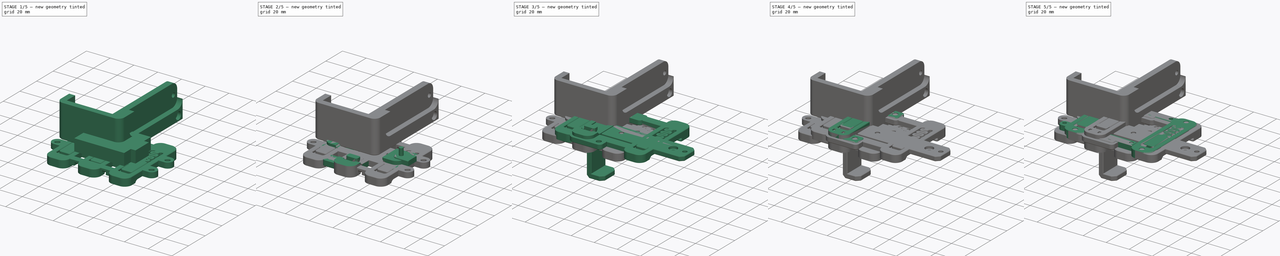
[diagram: build sequence overview — one tinted view per stage of 5, left to right]
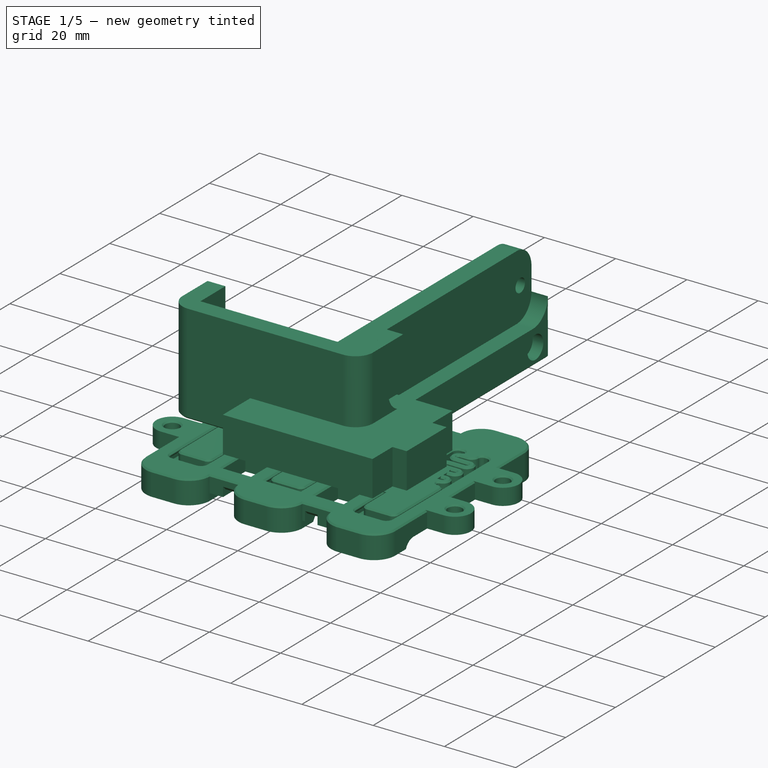
[diagram: stage 1 of 5 — iso view after this stage's code; geometry added in this stage tinted green]
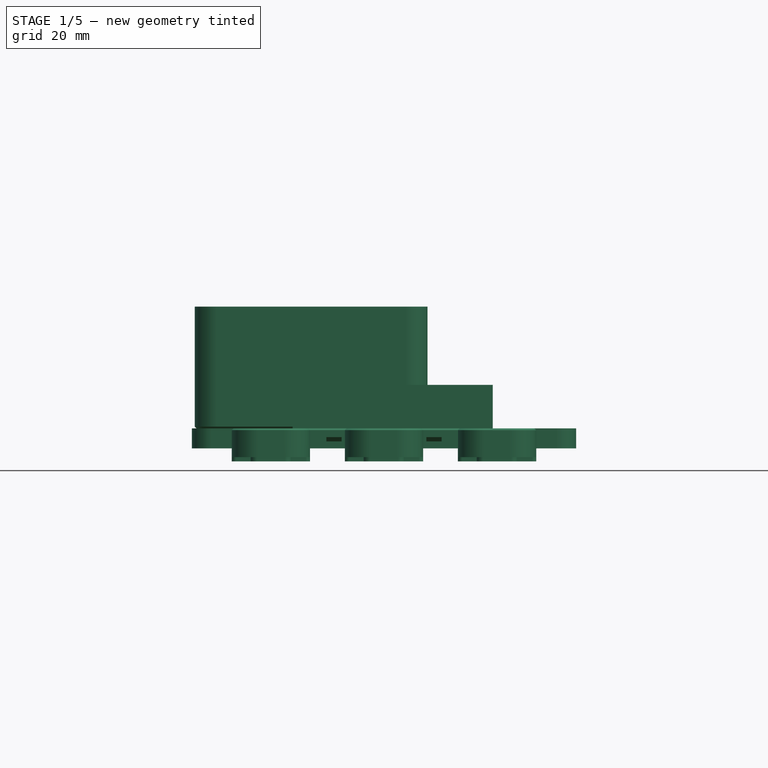
[diagram: stage 1 of 5 — front view after this stage's code; geometry added in this stage tinted green]
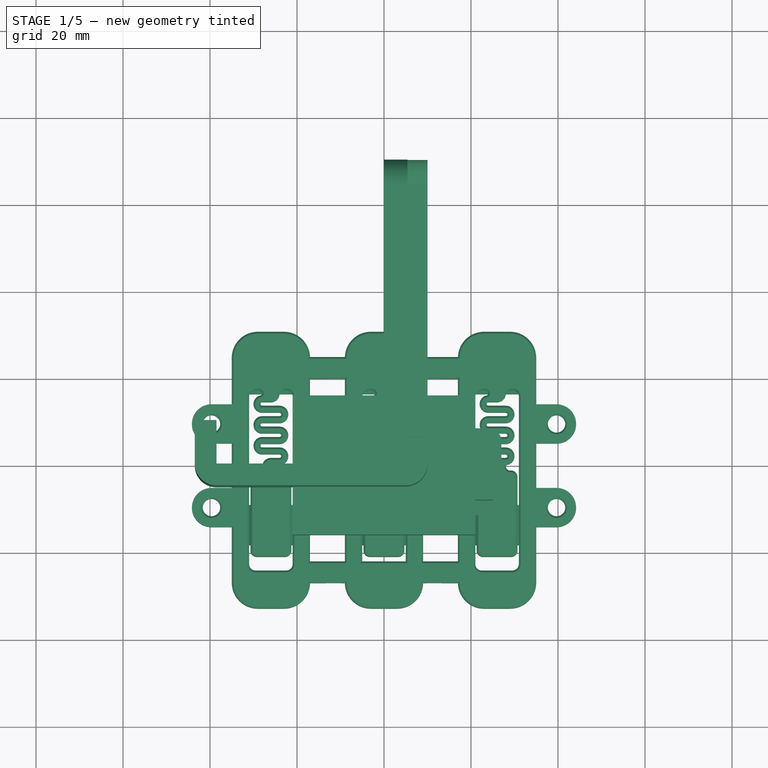
[diagram: stage 1 of 5 — top view after this stage's code; geometry added in this stage tinted green]
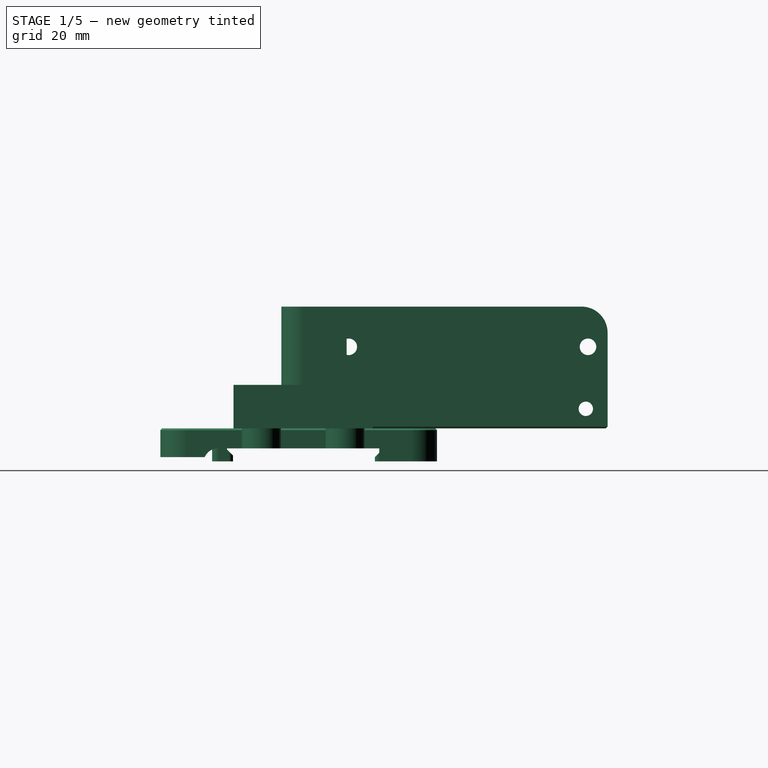
[diagram: stage 1 of 5 — right view after this stage's code; geometry added in this stage tinted green]
FCSTD DOCUMENT  (FreeCAD 0.19R24291 (Git))
Label: din-mounter
License: Other
LicenseURL: GPL3
objects: Sketcher::SketchObject×24, Part::Feature×21, Part::Box×19, Part::Chamfer×19, Part::MultiFuse×19, Part::Cylinder×16, PartDesign::Pocket×15, Part::Fillet×13, PartDesign::Chamfer×12, Part::Cut×12, PartDesign::Pad×10, PartDesign::Body×9, PartDesign::FeatureBase×6, PartDesign::Fillet×4, Part::Refine×1, PartDesign::Plane×1, PartDesign::LinearPattern×1
note: 243 computed .brp shape members not serialized (recipe doc carries the construction recipe); baked Part::Feature solids carry a one-line shape summary decoded from their .brp

FEATURE [Part::Feature] Part__Feature822001001  label="RS-25 PSU Bracket003"
  shape: bbox 18 x 63.6 x 7.6 mm, 163 faces (baked)
FEATURE [PartDesign::FeatureBase] BaseFeature
  BaseFeature = -> Part__Feature822001001
FEATURE [PartDesign::Pad] Pad
  BaseFeature = -> BaseFeature
  Direction = (1,1,1)
  Length = 1
  Length2 = 100
  Profile = -> BaseFeature [Face161]
  Type = 0
FEATURE [Sketcher::SketchObject] Sketch
  FullyConstrained = false
  MapMode = 5
  Placement = pos=(0,0,0.0031494) rot=(0,0,1;0rad)
  Support = -> [Pad]
  sketch-geometry (1):
    g0: Circle CenterX=0 CenterY=26.5 CenterZ=0 NormalX=0 NormalY=0 NormalZ=1 AngleXU=0 Radius=2.5
  constraints (1):
    c: PointOnObject(g0,g-2)
FEATURE [PartDesign::Pad] Pad001
  BaseFeature = -> Pad
  Direction = (1,1,1)
  Length = 10
  Length2 = 100
  Profile = -> Sketch
  Type = 3
  UpToFace = -> Pad [Face68]
FEATURE [Sketcher::SketchObject] Sketch001
  FullyConstrained = false
  MapMode = 5
  Placement = pos=(0,0,0.0031494) rot=(0,0,1;0rad)
  Support = -> [Pad001]
  sketch-geometry (1):
    g0: Circle CenterX=0 CenterY=-28.5 CenterZ=0 NormalX=0 NormalY=0 NormalZ=1 AngleXU=0 Radius=2.5
  constraints (1):
    c: PointOnObject(g0,g-2)
FEATURE [PartDesign::Pad] Pad002
  BaseFeature = -> Pad001
  Direction = (1,1,1)
  Length = 10
  Length2 = 100
  Profile = -> Sketch001
  Refine = true
  Type = 3
  UpToFace = -> Pad001 [Face129]
FEATURE [PartDesign::Body] Body004010
  Group = -> [Sketch012,Pad004]
  Origin = -> Origin005
  Tip = -> Pad004
FEATURE [Part::Box] Box019  label="Cube019"
  AttacherType = Attacher::AttachEngine3D
  Height = 10
  Length = 42
  Placement = pos=(-21,-16,0) rot=(0,0,1;0rad)
  Width = 32
FEATURE [Part::Box] Box020  label="Cube020"
  AttacherType = Attacher::AttachEngine3D
  Height = 10
  Length = 10
  Placement = pos=(15,-8,0) rot=(0,0,1;0rad)
  Width = 16
FEATURE [Sketcher::SketchObject] Sketch013
  FullyConstrained = true
  MapMode = 5
  Support = -> [XY_Plane006]
  sketch-geometry (8):
    g0: LineSegment StartX=0 StartY=0 StartZ=0 EndX=-38.5 EndY=0 EndZ=0
    g1: LineSegment StartX=-38.5 StartY=0 StartZ=0 EndX=-38.5 EndY=10 EndZ=0
    g2: LineSegment StartX=-38.5 StartY=10 StartZ=0 EndX=-43.5 EndY=10 EndZ=0
    g3: LineSegment StartX=-43.5 StartY=10 StartZ=0 EndX=-43.5 EndY=-5 EndZ=0
    g4: LineSegment StartX=-43.5 StartY=-5 StartZ=0 EndX=10 EndY=-5 EndZ=0
    g5: LineSegment StartX=10 StartY=-5 StartZ=0 EndX=10 EndY=70 EndZ=0
    g6: LineSegment StartX=10 StartY=70 StartZ=0 EndX=0 EndY=70 EndZ=0
    g7: LineSegment StartX=0 StartY=70 StartZ=0 EndX=0 EndY=0 EndZ=0
  constraints (23):
    c: Coincident(g-1,g0)
    c: PointOnObject(g0,g-1)
    c: Coincident(g0,g1)
    c: Vertical(g1)
    c: Coincident(g1,g2)
    c: Horizontal(g2)
    c: Coincident(g2,g3)
    c: Vertical(g3)
    c: Coincident(g3,g4)
    c: Horizontal(g4)
    c: Coincident(g4,g5)
    c: Vertical(g5)
    c: Coincident(g5,g6)
    c: PointOnObject(g6,g-2)
    c: Horizontal(g6)
    c: Coincident(g6,g7)
    c: Coincident(g7,g0)
    c: DistanceY(g7,g7) = 70
    c: DistanceY(g1,g1) = 10
    c: DistanceX(g2,g2) = 5
    c: DistanceX(g6,g6) = 10
    c: DistanceY(g3,g0) = 5
    c: DistanceX(g0,g0) = 38.5
FEATURE [PartDesign::Pad] Pad005
  Direction = (1,1,1)
  Length = 28
  Length2 = 100
  Profile = -> Sketch013
  Type = 0
FEATURE [Sketcher::SketchObject] Sketch014
  ExternalGeometry = -> [Pad005]
  FullyConstrained = true
  MapMode = 5
  Placement = pos=(10,0,0) rot=(0.57735,0.57735,0.57735;2.0944rad)
  Support = -> [Pad005]
  sketch-geometry (4):
    g0: LineSegment StartX=70 StartY=28 StartZ=0 EndX=6 EndY=28 EndZ=0
    g1: LineSegment StartX=6 StartY=28 StartZ=0 EndX=6 EndY=9.5 EndZ=0
    g2: LineSegment StartX=6 StartY=9.5 StartZ=0 EndX=70 EndY=9.5 EndZ=0
    g3: LineSegment StartX=70 StartY=9.5 StartZ=0 EndX=70 EndY=28 EndZ=0
  constraints (11):
    c: Coincident(g0,g1)
    c: Coincident(g1,g2)
    c: Coincident(g2,g3)
    c: Coincident(g3,g0)
    c: Horizontal(g0)
    c: Horizontal(g2)
    c: Vertical(g1)
    c: Vertical(g3)
    c: Coincident(g0,g-3)
    c: DistanceX(g2,g2) = 64
    c: DistanceY(g1,g1) = 18.5
FEATURE [PartDesign::Pocket] Pocket009
  BaseFeature = -> Pad005
  Length = 4.6
  Length2 = 100
  Profile = -> Sketch014
  Type = 0
FEATURE [PartDesign::Fillet] Fillet013
  Base = -> Pocket009 [Edge16,Edge33]
  BaseFeature = -> Pocket009
  Radius = 6
  SupportTransform = false
FEATURE [Sketcher::SketchObject] Sketch015
  ExternalGeometry = -> [Fillet013]
  FullyConstrained = false
  MapMode = 5
  Placement = pos=(5.4,0,0) rot=(0.57735,0.57735,0.57735;2.0944rad)
  Support = -> [Fillet013]
  sketch-geometry (6):
    g0: ArcOfCircle CenterX=12 CenterY=22 CenterZ=0 NormalX=0 NormalY=0 NormalZ=1 AngleXU=0 Radius=6 StartAngle=1.5708 EndAngle=3.14159
    g1: ArcOfCircle CenterX=64 CenterY=15.5 CenterZ=0 NormalX=0 NormalY=0 NormalZ=1 AngleXU=0 Radius=6 StartAngle=4.71239 EndAngle=6.28319
    g2: LineSegment StartX=6 StartY=22 StartZ=0 EndX=6.00298 EndY=28 EndZ=0
    g3: LineSegment StartX=70 StartY=15.5 StartZ=0 EndX=69.9479 EndY=9.5 EndZ=0
    g4: LineSegment StartX=69.9479 StartY=9.5 StartZ=0 EndX=64 EndY=9.5 EndZ=0
    g5: LineSegment StartX=6.00298 StartY=28 StartZ=0 EndX=12 EndY=28 EndZ=0
  constraints (18):
    c: PointOnObject(g0,g-3)
    c: PointOnObject(g1,g-4)
    c: Vertical(g0,g0)
    c: Horizontal(g0,g0)
    c: Horizontal(g0,g-3)
    c: Vertical(g1,g1)
    c: Horizontal(g1,g1)
    c: Vertical(g1,g-4)
    c: Equal(g1,g0)
    c: Radius(g0) = 6
    c: Coincident(g0,g2)
    c: Coincident(g1,g3)
    c: Coincident(g3,g4)
    c: Coincident(g4,g1)
    c: Horizontal(g4)
    c: Coincident(g5,g2)
    c: Coincident(g5,g0)
    c: Horizontal(g5)
FEATURE [PartDesign::Pad] Pad006
  BaseFeature = -> Fillet013
  Direction = (1,1,1)
  Length = 4.6
  Length2 = 100
  Profile = -> Sketch015
  Type = 0
FEATURE [Sketcher::SketchObject] Sketch016
  ExternalGeometry = -> [Pad006]
  FullyConstrained = true
  MapMode = 5
  Placement = pos=(5.4,0,0) rot=(0.57735,0.57735,0.57735;2.0944rad)
  Support = -> [Pad006]
  sketch-geometry (2):
    g0: Circle CenterX=10.5 CenterY=18.75 CenterZ=0 NormalX=0 NormalY=0 NormalZ=1 AngleXU=0 Radius=1.9
    g1: Circle CenterX=65.5 CenterY=18.75 CenterZ=0 NormalX=0 NormalY=0 NormalZ=1 AngleXU=0 Radius=1.9
  constraints (7):
    c: Horizontal(g0,g1)
    c: Equal(g1,g0)
    c: Radius(g1) = 1.9
    c: DistanceY(g0,g-3) = 9.25
    c: DistanceX(g-4,g-5) = 64
    c: DistanceX(g-4,g0) = 4.5
    c: DistanceX(g1,g-5) = 4.5
FEATURE [PartDesign::Pocket] Pocket010  label="screw-hole"
  BaseFeature = -> Pad006
  Length = 6
  Length2 = 100
  Profile = -> Sketch016
  Type = 0
FEATURE [PartDesign::Fillet] Fillet014
  Base = -> Pocket010 [Edge54,Edge50]
  BaseFeature = -> Pocket010
  Radius = 5
  SupportTransform = false
FEATURE [Sketcher::SketchObject] Sketch017
  ExternalGeometry = -> [Fillet014]
  FullyConstrained = true
  MapMode = 5
  Placement = pos=(10,0,0) rot=(0.57735,0.57735,0.57735;2.0944rad)
  Support = -> [Fillet014]
  sketch-geometry (1):
    g0: Circle CenterX=65 CenterY=4.5 CenterZ=0 NormalX=0 NormalY=0 NormalZ=1 AngleXU=0 Radius=1.65
  constraints (3):
    c: DistanceX(g0,g-3) = 5
    c: DistanceY(g0,g-3) = 5
    c: Radius(g0) = 1.65
FEATURE [PartDesign::Pocket] Pocket011
  BaseFeature = -> Fillet014
  Length = 5
  Length2 = 100
  Profile = -> Sketch017
  Type = 1
FEATURE [Sketcher::SketchObject] Sketch018
  ExternalGeometry = -> [Pocket011]
  FullyConstrained = true
  MapMode = 5
  Placement = pos=(10,0,0) rot=(0.57735,0.57735,0.57735;2.0944rad)
  Support = -> [Pocket011]
  sketch-geometry (1):
    g0: Circle CenterX=65 CenterY=4.5 CenterZ=0 NormalX=0 NormalY=0 NormalZ=1 AngleXU=0 Radius=3.2
  constraints (2):
    c: Coincident(g0,g-3)
    c: Radius(g0) = 3.2
FEATURE [PartDesign::Pocket] Pocket012
  BaseFeature = -> Pocket011
  Length = 3
  Length2 = 100
  Profile = -> Sketch018
  Type = 0
FEATURE [PartDesign::Chamfer] Chamfer012024
  Angle = 45
  Base = -> Pocket012 [Face1]
  BaseFeature = -> Pocket012
  ChamferType = 0
  FlipDirection = false
  Size = 0.4
  Size2 = 1
  SupportTransform = false
FEATURE [PartDesign::Body] Body004012  label="HRP-100-bracket"
  Group = -> [Sketch013,Pad005,Sketch014,Pocket009,Fillet013,Sketch015,Pad006,Sketch016,Pocket010,Fillet014,Sketch017,Pocket011,Sketch018,Pocket012,Chamfer012024]
  Origin = -> Origin006
  Tip = -> Chamfer012024
FEATURE [Part::Feature] Fusion017004001003001  label="u2c-base"
  shape: bbox 70 x 63.6 x 7.6 mm, 318 faces (baked)
FEATURE [PartDesign::FeatureBase] BaseFeature004
  BaseFeature = -> Fusion017004001003001
FEATURE [Sketcher::SketchObject] Sketch019
  FullyConstrained = true
  MapMode = 5
  Placement = pos=(0,0,0.0031494) rot=(0,0,1;0rad)
  Support = -> [BaseFeature004]
  sketch-geometry (20):
    g0: Circle CenterX=-39.665 CenterY=9.615 CenterZ=0 NormalX=0 NormalY=0 NormalZ=1 AngleXU=0 Radius=2
    g1: Circle CenterX=39.665 CenterY=9.615 CenterZ=0 NormalX=0 NormalY=0 NormalZ=1 AngleXU=0 Radius=2
    g2: Circle CenterX=-39.665 CenterY=-9.615 CenterZ=0 NormalX=0 NormalY=0 NormalZ=1 AngleXU=0 Radius=2
    g3: Circle CenterX=39.665 CenterY=-9.615 CenterZ=0 NormalX=0 NormalY=0 NormalZ=1 AngleXU=0 Radius=2
    g4: ArcOfCircle CenterX=-39.665 CenterY=9.615 CenterZ=0 NormalX=0 NormalY=0 NormalZ=1 AngleXU=0 Radius=4.5 StartAngle=1.5708 EndAngle=4.71239
    g5: ArcOfCircle CenterX=-39.665 CenterY=-9.615 CenterZ=0 NormalX=0 NormalY=0 NormalZ=1 AngleXU=0 Radius=4.5 StartAngle=1.5708 EndAngle=4.71239
    g6: ArcOfCircle CenterX=39.665 CenterY=9.615 CenterZ=0 NormalX=0 NormalY=0 NormalZ=1 AngleXU=0 Radius=4.5 StartAngle=4.71239 EndAngle=7.85398
    g7: ArcOfCircle CenterX=39.665 CenterY=-9.615 CenterZ=0 NormalX=0 NormalY=0 NormalZ=1 AngleXU=0 Radius=4.5 StartAngle=4.71239 EndAngle=7.85398
    g8: LineSegment StartX=-39.665 StartY=14.115 StartZ=0 EndX=-34.165 EndY=14.115 EndZ=0
    g9: LineSegment StartX=-34.165 StartY=14.115 StartZ=0 EndX=-34.165 EndY=5.115 EndZ=0
    g10: LineSegment StartX=-34.165 StartY=5.115 StartZ=0 EndX=-39.665 EndY=5.115 EndZ=0
    g11: LineSegment StartX=-39.665 StartY=-5.115 StartZ=0 EndX=-34.165 EndY=-5.115 EndZ=0
    g12: LineSegment StartX=-34.165 StartY=-5.115 StartZ=0 EndX=-34.165 EndY=-14.115 EndZ=0
    g13: LineSegment StartX=-34.165 StartY=-14.115 StartZ=0 EndX=-39.665 EndY=-14.115 EndZ=0
    g14: LineSegment StartX=39.665 StartY=-14.115 StartZ=0 EndX=34.165 EndY=-14.115 EndZ=0
    g15: LineSegment StartX=34.165 StartY=-14.115 StartZ=0 EndX=34.165 EndY=-5.115 EndZ=0
    g16: LineSegment StartX=34.165 StartY=-5.115 StartZ=0 EndX=39.665 EndY=-5.115 EndZ=0
    g17: LineSegment StartX=39.665 StartY=5.115 StartZ=0 EndX=34.165 EndY=5.115 EndZ=0
    g18: LineSegment StartX=34.165 StartY=5.115 StartZ=0 EndX=34.165 EndY=14.115 EndZ=0
    g19: LineSegment StartX=34.165 StartY=14.115 StartZ=0 EndX=39.665 EndY=14.115 EndZ=0
  constraints (56):
    c: Horizontal(g3,g2)
    c: Horizontal(g0,g1)
    c: Vertical(g0,g2)
    c: Vertical(g1,g3)
    c: DistanceX(g0,g-1) = 39.665
    c: DistanceX(g-1,g1) = 39.665
    c: DistanceY(g-1,g0) = 9.615
    c: DistanceY(g2,g-1) = 9.615
    c: Equal(g0,g2)
    c: Equal(g2,g3)
    c: Equal(g3,g1)
    c: Radius(g3) = 2
    c: Coincident(g4,g0)
    c: Coincident(g5,g2)
    c: Coincident(g6,g1)
    c: Coincident(g7,g3)
    c: Vertical(g6,g6)
    c: Vertical(g6,g7)
    c: Vertical(g7,g7)
    c: Vertical(g7,g3)
    c: Vertical(g4,g0)
    c: Vertical(g0,g4)
    c: Vertical(g4,g5)
    c: Vertical(g5,g5)
    c: Equal(g4,g5)
    c: Equal(g5,g7)
    c: Equal(g7,g6)
    c: Radius(g6) = 4.5
    c: Tangent(g4,g8) = 1.5708
    c: Coincident(g8,g9)
    c: Vertical(g9)
    c: Coincident(g9,g10)
    c: Coincident(g10,g4)
    c: Horizontal(g10)
    c: Tangent(g5,g11) = 1.5708
    c: Coincident(g11,g12)
    c: Vertical(g12)
    c: Coincident(g12,g13)
    c: Coincident(g13,g5)
    c: Horizontal(g13)
    c: Tangent(g7,g14) = 1.5708
    c: Coincident(g14,g15)
    c: Vertical(g15)
    c: Coincident(g15,g16)
    c: Coincident(g16,g7)
    c: Horizontal(g16)
    c: Tangent(g6,g17) = 1.5708
    c: Coincident(g17,g18)
    c: Vertical(g18)
    c: Coincident(g18,g19)
    c: Coincident(g19,g6)
    c: Horizontal(g19)
    c: Vertical(g17,g15)
    c: DistanceX(g19,g19) = 5.5
    c: Vertical(g9,g11)
    c: DistanceX(g8,g8) = 5.5
FEATURE [PartDesign::Pad] Pad007
  BaseFeature = -> BaseFeature004
  Direction = (1,1,1)
  Length = 4.6
  Length2 = 100
  Profile = -> Sketch019
  Reversed = true
  Type = 0
FEATURE [PartDesign::Chamfer] Chamfer012025
  Angle = 45
  Base = -> Pad007 [Edge816,Edge806,Edge258,Edge247,Edge899,Edge888,Edge441,Edge437]
  BaseFeature = -> Pad007
  ChamferType = 0
  FlipDirection = false
  Size = 0.4
  Size2 = 1
  SupportTransform = false
FEATURE [Sketcher::SketchObject] Sketch020
  ExternalGeometry = -> [Chamfer012025]
  FullyConstrained = true
  MapMode = 5
  Placement = pos=(0,-27,0) rot=(1,0,0;1.5708rad)
  Support = -> [Chamfer012025]
  sketch-geometry (12):
    g0: LineSegment StartX=-13.25 StartY=-3 StartZ=0 EndX=-9.75 EndY=-3 EndZ=0
    g1: LineSegment StartX=-9.75 StartY=-3 StartZ=0 EndX=-9.75 EndY=-5 EndZ=0
    g2: LineSegment StartX=-9.75 StartY=-5 StartZ=0 EndX=-13.25 EndY=-5 EndZ=0
    g3: LineSegment StartX=-13.25 StartY=-5 StartZ=0 EndX=-13.25 EndY=-3 EndZ=0
    g4: LineSegment StartX=9.75 StartY=-3 StartZ=0 EndX=13.25 EndY=-3 EndZ=0
    g5: LineSegment StartX=13.25 StartY=-3 StartZ=0 EndX=13.25 EndY=-5 EndZ=0
    g6: LineSegment StartX=13.25 StartY=-5 StartZ=0 EndX=9.75 EndY=-5 EndZ=0
    g7: LineSegment StartX=9.75 StartY=-5 StartZ=0 EndX=9.75 EndY=-3 EndZ=0
    g8: LineSegment StartX=-1.75 StartY=-3 StartZ=0 EndX=1.75 EndY=-3 EndZ=0
    g9: LineSegment StartX=1.75 StartY=-3 StartZ=0 EndX=1.75 EndY=-5 EndZ=0
    g10: LineSegment StartX=1.75 StartY=-5 StartZ=0 EndX=-1.75 EndY=-5 EndZ=0
    g11: LineSegment StartX=-1.75 StartY=-5 StartZ=0 EndX=-1.75 EndY=-3 EndZ=0
  constraints (36):
    c: Coincident(g0,g1)
    c: Coincident(g1,g2)
    c: Coincident(g2,g3)
    c: Coincident(g3,g0)
    c: Horizontal(g0)
    c: Horizontal(g2)
    c: Vertical(g1)
    c: Vertical(g3)
    c: Coincident(g4,g5)
    c: Coincident(g5,g6)
    c: Coincident(g6,g7)
    c: Coincident(g7,g4)
    c: Horizontal(g4)
    c: Horizontal(g6)
    c: Vertical(g5)
    c: Vertical(g7)
    c: Coincident(g8,g9)
    c: Coincident(g9,g10)
    c: Coincident(g10,g11)
    c: Coincident(g11,g8)
    c: Horizontal(g8)
    c: Horizontal(g10)
    c: Vertical(g9)
    c: Vertical(g11)
    c: Horizontal(g0,g8)
    c: Horizontal(g8,g4)
    c: Horizontal(g1,g10)
    c: Horizontal(g10,g6)
    c: DistanceY(g3,g3) = 2
    c: DistanceX(g2,g2) = 3.5
    c: Equal(g2,g10)
    c: Equal(g10,g6)
    c: DistanceX(g8,g-1) = 1.75
    c: DistanceX(g0,g8) = 8
    c: DistanceX(g8,g4) = 8
    c: DistanceY(g8,g-1) = 3
FEATURE [PartDesign::Pocket] Pocket013
  BaseFeature = -> Chamfer012025
  Length = 5
  Length2 = 100
  Profile = -> Sketch020
  Type = 1
FEATURE [PartDesign::Chamfer] Chamfer012026
  Angle = 45
  Base = -> Pocket013 [Edge506,Edge526,Edge530,Edge510,Edge514,Edge534,Edge491,Edge457,Edge461,Edge495,Edge465,Edge499]
  BaseFeature = -> Pocket013
  ChamferType = 0
  FlipDirection = false
  Size = 1
  Size2 = 1
  SupportTransform = false
FEATURE [Sketcher::SketchObject] Sketch021
  ExternalGeometry = -> [Chamfer012026]
  FullyConstrained = true
  MapMode = 5
  Placement = pos=(0,0,0.0031494) rot=(0,0,1;0rad)
  Support = -> [Chamfer012026]
  sketch-geometry (8):
    g0: LineSegment StartX=-17.4028 StartY=12.675 StartZ=0 EndX=17.3972 EndY=12.675 EndZ=0
    g1: LineSegment StartX=17.3972 StartY=12.675 StartZ=0 EndX=17.3972 EndY=7.675 EndZ=0
    g2: LineSegment StartX=17.3972 StartY=7.675 StartZ=0 EndX=-17.4028 EndY=7.675 EndZ=0
    g3: LineSegment StartX=-17.4028 StartY=7.675 StartZ=0 EndX=-17.4028 EndY=12.675 EndZ=0
    g4: LineSegment StartX=-17.4028 StartY=-12.675 StartZ=0 EndX=17.3972 EndY=-12.675 EndZ=0
    g5: LineSegment StartX=17.3972 StartY=-12.675 StartZ=0 EndX=17.3972 EndY=-7.675 EndZ=0
    g6: LineSegment StartX=17.3972 StartY=-7.675 StartZ=0 EndX=-17.4028 EndY=-7.675 EndZ=0
    g7: LineSegment StartX=-17.4028 StartY=-7.675 StartZ=0 EndX=-17.4028 EndY=-12.675 EndZ=0
  constraints (24):
    c: Coincident(g0,g1)
    c: Coincident(g1,g2)
    c: Coincident(g2,g3)
    c: Coincident(g3,g0)
    c: Horizontal(g0)
    c: Horizontal(g2)
    c: Vertical(g1)
    c: Vertical(g3)
    c: PointOnObject(g0,g-4)
    c: PointOnObject(g1,g-3)
    c: Coincident(g4,g5)
    c: Coincident(g5,g6)
    c: Coincident(g6,g7)
    c: Coincident(g7,g4)
    c: Horizontal(g4)
    c: Horizontal(g6)
    c: Vertical(g5)
    c: Vertical(g7)
    c: PointOnObject(g4,g-4)
    c: PointOnObject(g5,g-3)
    c: DistanceY(g4,g0) = 25.35
    c: DistanceY(g4,g-1) = 12.675
    c: DistanceY(g3,g3) = 5
    c: DistanceY(g7,g7) = 5
FEATURE [PartDesign::Pad] Pad008
  BaseFeature = -> Chamfer012026
  Direction = (1,1,1)
  Length = 4.6
  Length2 = 100
  Profile = -> Sketch021
  Refine = true
  Reversed = true
  Type = 0
FEATURE [PartDesign::Body] Body004013  label="u2c-mounter"
  BaseFeature = -> Fusion017004001003001
  Group = -> [BaseFeature004,Sketch019,Pad007,Chamfer012025,Sketch020,Pocket013,Chamfer012026,Sketch021,Pad008]
  Origin = -> Origin007
  Tip = -> Pad008
FEATURE [PartDesign::FeatureBase] Clone
  BaseFeature = -> Pad002
FEATURE [Sketcher::SketchObject] Sketch022
  ExternalGeometry = -> [Clone]
  FullyConstrained = true
  MapMode = 5
  Placement = pos=(0,0,0.0031494) rot=(0,0,1;0rad)
  Support = -> [Clone]
  sketch-geometry (4):
    g0: LineSegment StartX=8.59721 StartY=8.59696 StartZ=0 EndX=26.9972 EndY=8.59696 EndZ=0
    g1: LineSegment StartX=26.9972 StartY=8.59696 StartZ=0 EndX=26.9972 EndY=-11.403 EndZ=0
    g2: LineSegment StartX=26.9972 StartY=-11.403 StartZ=0 EndX=8.59721 EndY=-11.403 EndZ=0
    g3: LineSegment StartX=8.59721 StartY=-11.403 StartZ=0 EndX=8.59721 EndY=8.59696 EndZ=0
  constraints (12):
    c: Coincident(g0,g1)
    c: Coincident(g1,g2)
    c: Coincident(g2,g3)
    c: Coincident(g3,g0)
    c: Horizontal(g0)
    c: Horizontal(g2)
    c: Vertical(g1)
    c: Vertical(g3)
    c: PointOnObject(g0,g-3)
    c: DistanceY(g-4,g0) = 6
    c: DistanceY(g3,g3) = 20
    c: DistanceX(g0,g0) = 18.4
FEATURE [PartDesign::Pad] Pad009
  BaseFeature = -> Clone
  Direction = (1,1,1)
  Length = 4.6
  Length2 = 100
  Profile = -> Sketch022
  Reversed = true
  Type = 0
FEATURE [PartDesign::Fillet] Fillet015
  Base = -> Pad009 [Edge239,Edge237]
  BaseFeature = -> Pad009
  Radius = 3
  SupportTransform = false
FEATURE [PartDesign::Plane] DatumPlane
  AttachmentOffset = pos=(0,0,-3) rot=(0,0,1;0rad)
  Length = 74.8783
  MapMode = 5
  Placement = pos=(23.9972,3e-16,-2.403e-13) rot=(0.57735,0.57735,0.57735;2.0944rad)
  ResizeMode = 0
  Support = -> [Fillet015]
  Width = 61.2783
FEATURE [Sketcher::SketchObject] Sketch023
  ExternalGeometry = -> [Fillet015]
  FullyConstrained = true
  MapMode = 5
  Placement = pos=(23.9972,3e-16,-2.403e-13) rot=(0.57735,0.57735,0.57735;2.0944rad)
  Support = -> [DatumPlane]
  sketch-geometry (8):
    g0: LineSegment StartX=-7.40304 StartY=1.00315 StartZ=0 EndX=-7.40304 EndY=-3.59685 EndZ=0
    g1: LineSegment StartX=-7.40304 StartY=-3.59685 StartZ=0 EndX=4.59696 EndY=-3.59685 EndZ=0
    g2: LineSegment StartX=4.59696 StartY=-3.59685 StartZ=0 EndX=4.59696 EndY=1.00315 EndZ=0
    g3: LineSegment StartX=4.59696 StartY=1.00315 StartZ=0 EndX=2.59696 EndY=1.00315 EndZ=0
    g4: LineSegment StartX=2.59696 StartY=1.00315 StartZ=0 EndX=2.59696 EndY=-1.59685 EndZ=0
    g5: LineSegment StartX=2.59696 StartY=-1.59685 StartZ=0 EndX=-5.40304 EndY=-1.59685 EndZ=0
    g6: LineSegment StartX=-5.40304 StartY=-1.59685 StartZ=0 EndX=-5.40304 EndY=1.00315 EndZ=0
    g7: LineSegment StartX=-5.40304 StartY=1.00315 StartZ=0 EndX=-7.40304 EndY=1.00315 EndZ=0
  constraints (24):
    c: Vertical(g0)
    c: Coincident(g0,g1)
    c: Horizontal(g1)
    c: Coincident(g1,g2)
    c: Vertical(g2)
    c: Coincident(g2,g3)
    c: Horizontal(g3)
    c: Coincident(g3,g4)
    c: Vertical(g4)
    c: Coincident(g4,g5)
    c: Horizontal(g5)
    c: Coincident(g5,g6)
    c: Vertical(g6)
    c: Coincident(g6,g7)
    c: Coincident(g7,g0)
    c: Horizontal(g7)
    c: Horizontal(g6,g3)
    c: DistanceY(g-4,g2) = 1
    c: DistanceY(g-5,g1) = 1
    c: DistanceY(g1,g4) = 2
    c: DistanceX(g-3,g0) = 1
    c: DistanceX(g7,g7) = 2
    c: DistanceX(g3,g3) = 2
    c: DistanceX(g2,g-4) = 1
FEATURE [PartDesign::Pocket] Pocket014
  BaseFeature = -> Fillet015
  Length = 3
  Length2 = 100
  Profile = -> Sketch023
  Type = 0
FEATURE [PartDesign::LinearPattern] LinearPattern
  BaseFeature = -> Pocket014
  Direction = -> X_Axis008
  Length = 8
  Occurrences = 2
  Originals = -> [Pocket014]
  Reversed = true
FEATURE [PartDesign::Chamfer] Chamfer012027
  Angle = 45
  Base = -> LinearPattern [Edge110,Edge96,Edge125,Edge123,Edge118,Edge108,Edge124,Edge126]
  BaseFeature = -> LinearPattern
  ChamferType = 0
  FlipDirection = false
  Size = 1
  Size2 = 1
  SupportTransform = false
FEATURE [PartDesign::Fillet] Fillet016
  Base = -> Chamfer012027 [Edge124,Edge274,Edge2,Edge16,Edge277,Edge145,Edge49,Edge50]
  BaseFeature = -> Chamfer012027
  Radius = 1
  SupportTransform = false
FEATURE [PartDesign::Chamfer] Chamfer012028
  Angle = 45
  Base = -> Fillet016 [Edge3,Edge30,Edge37,Edge34,Edge32,Edge39,Edge29,Edge36]
  BaseFeature = -> Fillet016
  ChamferType = 0
  FlipDirection = false
  Size = 0.4
  Size2 = 1
  SupportTransform = false
FEATURE [PartDesign::Body] Body004014  label="u2c-cable-mounter"
  Group = -> [Clone,Sketch022,Pad009,Fillet015,DatumPlane,Sketch023,Pocket014,LinearPattern,Chamfer012027,Fillet016,Chamfer012028]
  Origin = -> Origin008
  Tip = -> Chamfer012028
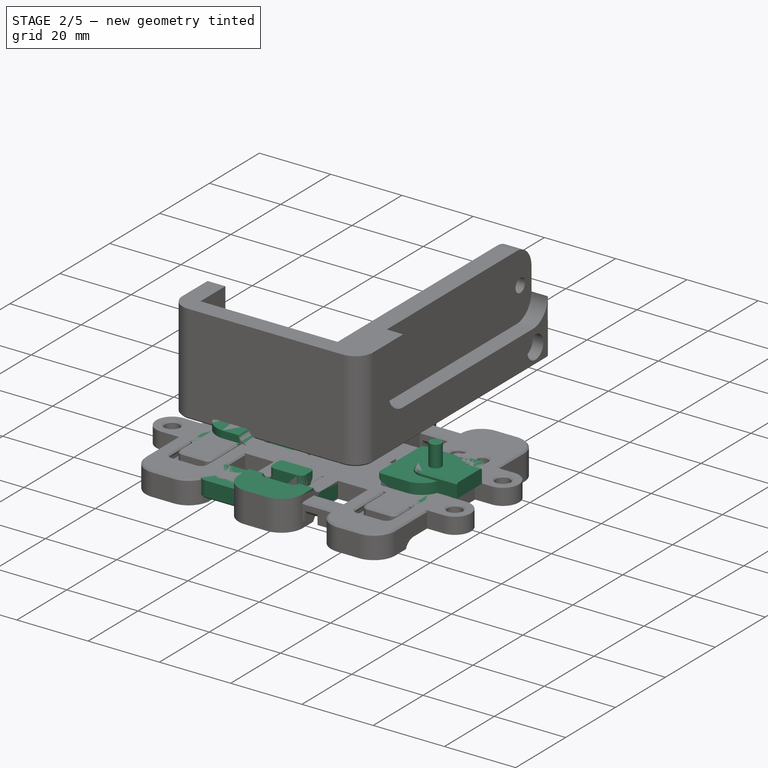
[diagram: stage 2 of 5 — iso view after this stage's code; geometry added in this stage tinted green]
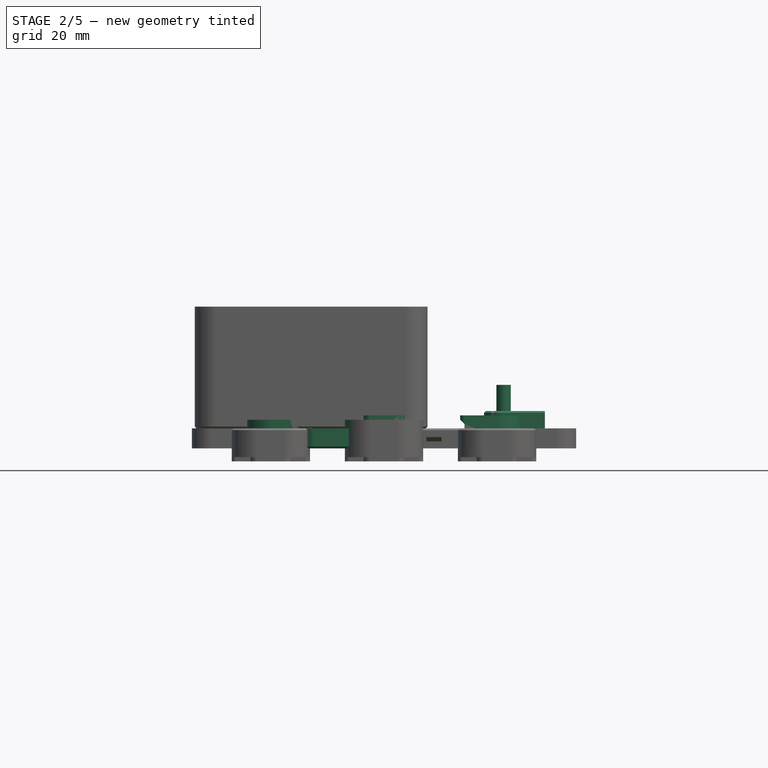
[diagram: stage 2 of 5 — front view after this stage's code; geometry added in this stage tinted green]
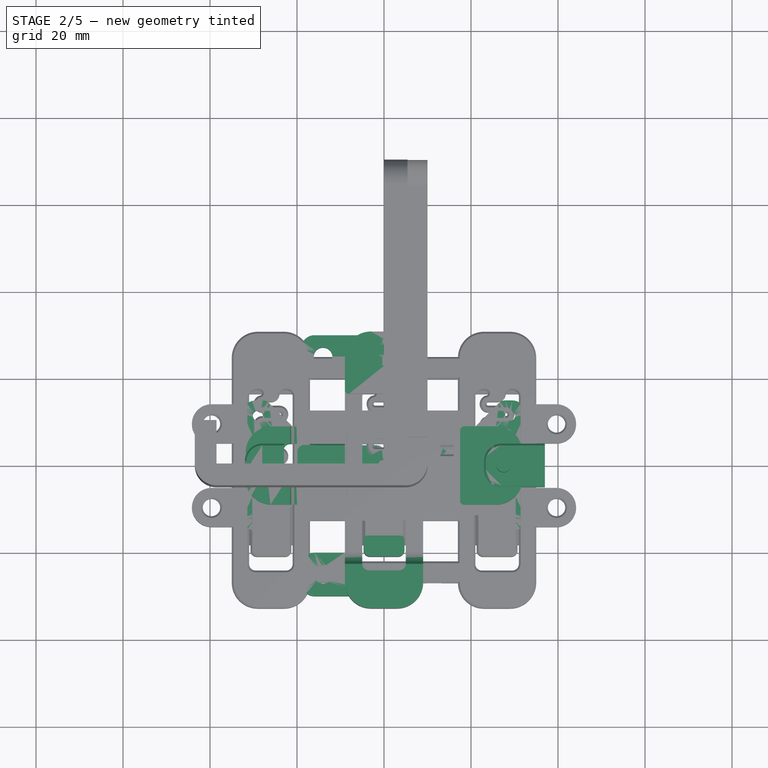
[diagram: stage 2 of 5 — top view after this stage's code; geometry added in this stage tinted green]
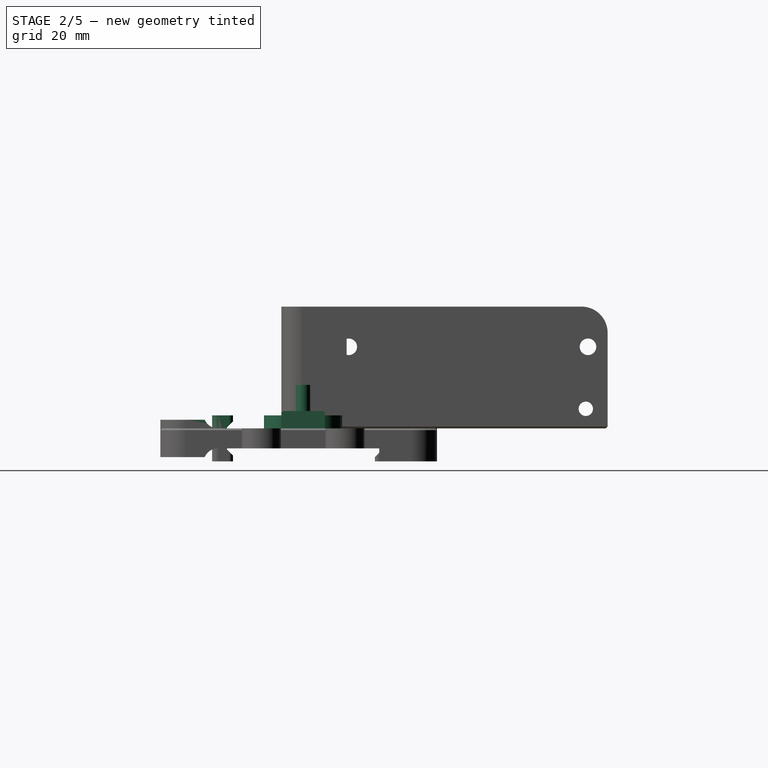
[diagram: stage 2 of 5 — right view after this stage's code; geometry added in this stage tinted green]
FEATURE [Part::Cylinder] Cylinder011
  Angle = 360
  AttacherType = Attacher::AttachEngine3D
  Height = 10
  Placement = pos=(27.5,0,0) rot=(0,0,1;0rad)
  Radius = 1.65
FEATURE [Part::Box] Box015  label="Cube015"
  AttacherType = Attacher::AttachEngine3D
  Height = 4
  Length = 9
  Placement = pos=(-32,-5,0) rot=(0,0,1;0rad)
  Width = 10
FEATURE [Part::Box] Box016  label="Cube016"
  AttacherType = Attacher::AttachEngine3D
  Height = 4
  Length = 14
  Placement = pos=(23,-5,0) rot=(0,0,1;0rad)
  Width = 10
FEATURE [Part::Fillet] Fillet008
  Base = -> Box015
  Edges = 2 edges r=4: [Edge1,Edge3]
FEATURE [Part::Fillet] Fillet009
  Base = -> Box016
  Edges = 2 edges r=4: [Edge1,Edge3]
FEATURE [Part::Chamfer] Chamfer012016
  Base = -> Fillet008
  Edges = 5 edges r=0.4: [Edge1,Edge5,Edge6,Edge8,Edge9]
FEATURE [Part::Chamfer] Chamfer012017
  Base = -> Fillet009
  Edges = 4 edges r=0.4: [Edge1,Edge5,Edge8,Edge9]
FEATURE [Part::MultiFuse] Fusion016
  Shapes = -> [Chamfer012016,Chamfer012017]
FEATURE [Part::Refine] Fusion017001  label="rs-25-psu-mounter001"
  Placement = pos=(0,0,0) rot=(0,1,0;3.14159rad)
  Source = -> Fusion017
FEATURE [Part::Feature] Body004009  label="base007"
  Placement = pos=(0,0,4.6) rot=(0,0,1;0rad)
  shape: bbox 18 x 63.6 x 7.6 mm, 165 faces (baked)
FEATURE [Part::Cylinder] Cylinder012
  Angle = 360
  AttacherType = Attacher::AttachEngine3D
  Height = 10
  Placement = pos=(14,25,0) rot=(0,0,1;0rad)
  Radius = 2.15
FEATURE [Part::Cylinder] Cylinder013
  Angle = 360
  AttacherType = Attacher::AttachEngine3D
  Height = 10
  Placement = pos=(14,-25,0) rot=(0,0,1;0rad)
  Radius = 2.15
FEATURE [Part::Box] Box017  label="Cube017"
  AttacherType = Attacher::AttachEngine3D
  Height = 4.6
  Length = 14
  Placement = pos=(5,20,0) rot=(0,0,1;0rad)
  Width = 10
FEATURE [Part::Box] Box018  label="Cube018"
  AttacherType = Attacher::AttachEngine3D
  Height = 4.6
  Length = 12
  Placement = pos=(7,-30,0) rot=(0,0,1;0rad)
  Width = 10
FEATURE [Part::MultiFuse] Fusion017002
  Shapes = -> [Box018,Box017]
FEATURE [Part::Fillet] Fillet010
  Base = -> Fusion017002
  Edges = 4 edges r=3: [Edge5,Edge7,Edge17,Edge19]
FEATURE [Part::MultiFuse] Fusion017003
  Shapes = -> [Cylinder013,Cylinder012]
FEATURE [Part::Cut] Cut008
  Base = -> Fillet010
  Tool = -> Fusion017003
FEATURE [Part::Chamfer] Chamfer012021
  Base = -> Cut008
  Edges = 10 edges r=0.4: [Edge1,Edge5,Edge6,Edge8,Edge9,Edge22,Edge26,Edge27,Edge29,Edge30]
FEATURE [Part::MultiFuse] Fusion017004  label="lrs-200-mounter"
  Placement = pos=(0,0,0) rot=(0,1,0;3.14159rad)
  Shapes = -> [Chamfer012021,Body004009]
FEATURE [Part::Feature] Fusion017004001001  label="lrs-xx-200-psu-mounter"
  shape: bbox 28 x 63.6 x 7.6 mm, 179 faces (baked)
FEATURE [Part::Feature] Part__Mirroring001  label="lrs-xx-200-psu-mounter-mirror"
  shape: bbox 28 x 63.6 x 7.6 mm, 179 faces (baked)
FEATURE [Sketcher::SketchObject] Sketch012
  FullyConstrained = true
  MapMode = 5
  Support = -> [XY_Plane005]
  sketch-geometry (8):
    g0: Circle CenterX=-29 CenterY=11.5 CenterZ=0 NormalX=0 NormalY=0 NormalZ=1 AngleXU=0 Radius=1.15
    g1: Circle CenterX=29 CenterY=11.5 CenterZ=0 NormalX=0 NormalY=0 NormalZ=1 AngleXU=0 Radius=1.15
    g2: Circle CenterX=-29 CenterY=-11.5 CenterZ=0 NormalX=0 NormalY=0 NormalZ=1 AngleXU=0 Radius=1.15
    g3: Circle CenterX=29 CenterY=-11.5 CenterZ=0 NormalX=0 NormalY=0 NormalZ=1 AngleXU=0 Radius=1.15
    g4: LineSegment StartX=-32.5 StartY=15 StartZ=0 EndX=32.5 EndY=15 EndZ=0
    g5: LineSegment StartX=32.5 StartY=15 StartZ=0 EndX=32.5 EndY=-15 EndZ=0
    g6: LineSegment StartX=32.5 StartY=-15 StartZ=0 EndX=-32.5 EndY=-15 EndZ=0
    g7: LineSegment StartX=-32.5 StartY=-15 StartZ=0 EndX=-32.5 EndY=15 EndZ=0
  constraints (24):
    c: DistanceX(g0,g1) = 58
    c: DistanceX(g0,g-1) = 29
    c: DistanceX(g2,g0) = 0
    c: DistanceX(g3,g1) = 0
    c: DistanceY(g3,g1) = 23
    c: DistanceY(g-1,g1) = 11.5
    c: DistanceY(g2,g3) = 0
    c: DistanceY(g1,g0) = 0
    c: Radius(g1) = 1.15
    c: Radius(g3) = 1.15
    c: Radius(g2) = 1.15
    c: Radius(g0) = 1.15
    c: Coincident(g4,g5)
    c: Coincident(g5,g6)
    c: Coincident(g6,g7)
    c: Coincident(g7,g4)
    c: Horizontal(g4)
    c: Horizontal(g6)
    c: Vertical(g5)
    c: Vertical(g7)
    c: DistanceX(g4,g4) = 65
    c: DistanceX(g4,g-1) = 32.5
    c: DistanceY(g5,g5) = 30
    c: DistanceY(g-1,g4) = 15
FEATURE [Part::Feature] Body004011  label="base008"
  Placement = pos=(-1,2e-16,4.6) rot=(0,0,1;1.5708rad)
  shape: bbox 63.6 x 18 x 7.6 mm, 165 faces (baked)
FEATURE [PartDesign::Pad] Pad004
  Direction = (1,1,1)
  Length = 4.6
  Length2 = 100
  Profile = -> Sketch012
  Type = 0
FEATURE [Part::Cut] Cut009
  Base = -> Pad004
  Tool = -> Box019
FEATURE [Part::Chamfer] Chamfer012022
  Base = -> Cut009
  Edges = 4 edges r=6: [Edge2,Edge10,Edge22,Edge34]
FEATURE [Part::Fillet] Fillet011
  Base = -> Chamfer012022
  Edges = 4 edges r=3: [Edge2,Edge14,Edge28,Edge39]
FEATURE [Part::Cut] Cut010
  Base = -> Fillet011
  Tool = -> Box020
FEATURE [Part::Cylinder] Cylinder014
  Angle = 360
  AttacherType = Attacher::AttachEngine3D
  Height = 4
  Radius = 1.4
FEATURE [Part::Cylinder] Cylinder015
  Angle = 360
  AttacherType = Attacher::AttachEngine3D
  Height = 4
  Radius = 3.5
FEATURE [Part::Cut] Cut011  label="m2p5-spacer"
  Base = -> Cylinder015
  Tool = -> Cylinder014
FEATURE [Part::Fillet] Fillet012
  Base = -> Cut010
  Edges = 4 edges r=2: [Edge4,Edge25,Edge32,Edge68]
FEATURE [Part::Chamfer] Chamfer012023
  Base = -> Fillet012
  Edges = 28 edges r=0.4: [Edge3,Edge16,Edge19,Edge20,Edge21,Edge22,Edge23,Edge24,Edge25,Edge26,Edge27,Edge28,Edge39,Edge56,Edge59,Edge60,Edge61,Edge62,Edge63,Edge64,Edge65,Edge66,Edge67,Edge68,Edge69,Edge70,Edge71,Edge72]
FEATURE [Part::MultiFuse] Fusion017004001002  label="pi-zero-mount"
  Placement = pos=(0,0,0) rot=(0,1,0;3.14159rad)
  Shapes = -> [Body004011,Chamfer012023]
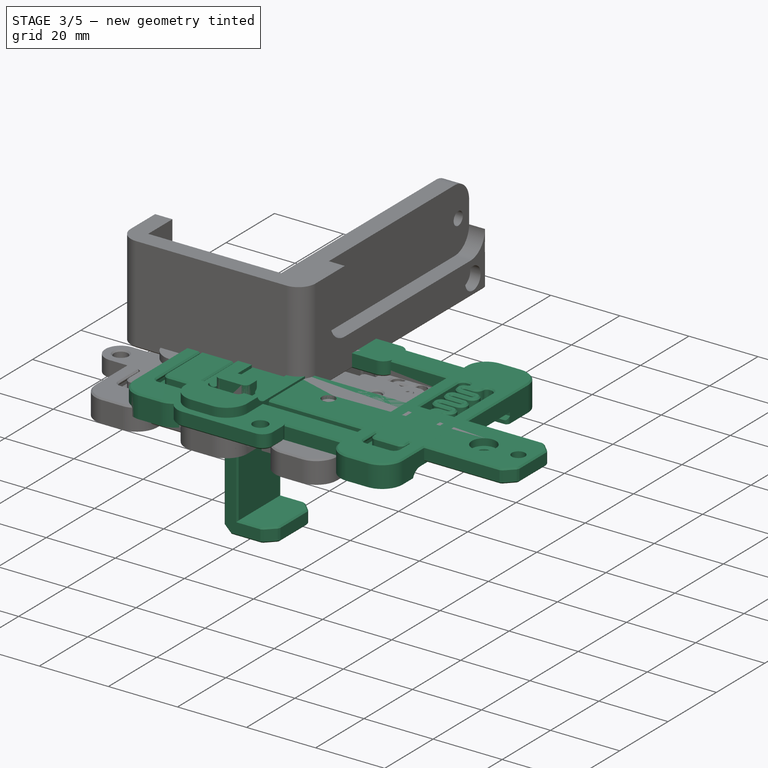
[diagram: stage 3 of 5 — iso view after this stage's code; geometry added in this stage tinted green]
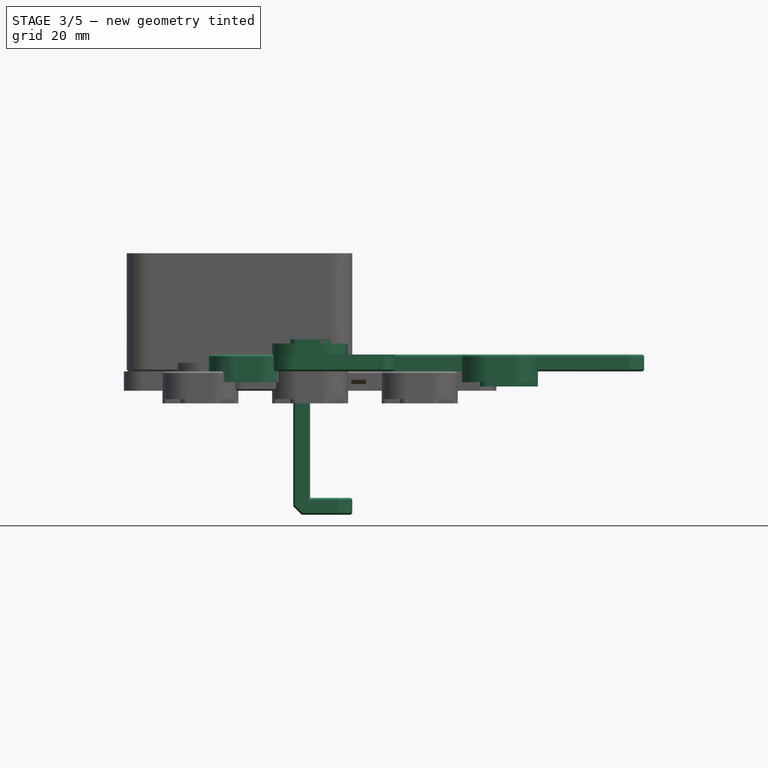
[diagram: stage 3 of 5 — front view after this stage's code; geometry added in this stage tinted green]
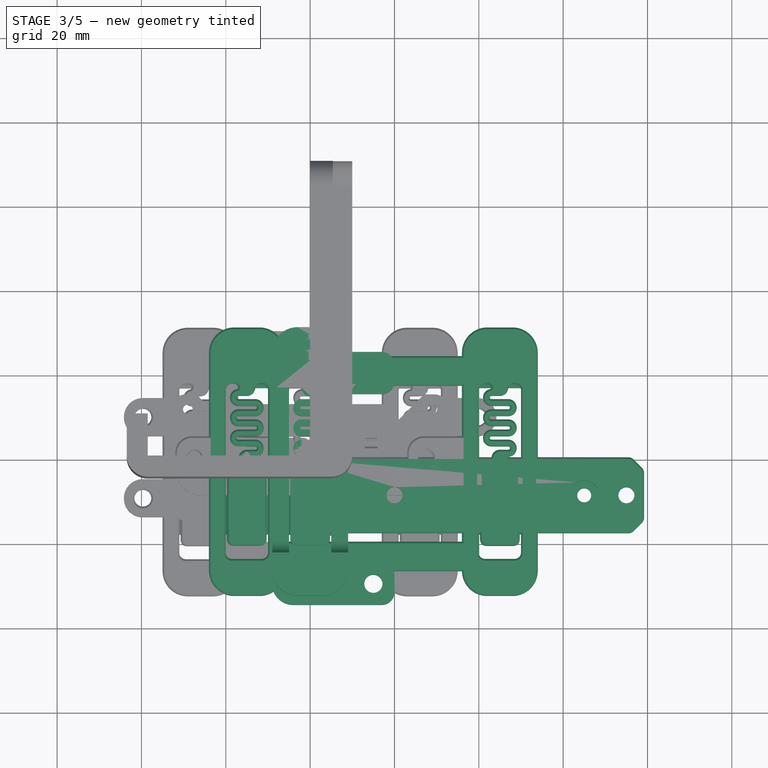
[diagram: stage 3 of 5 — top view after this stage's code; geometry added in this stage tinted green]
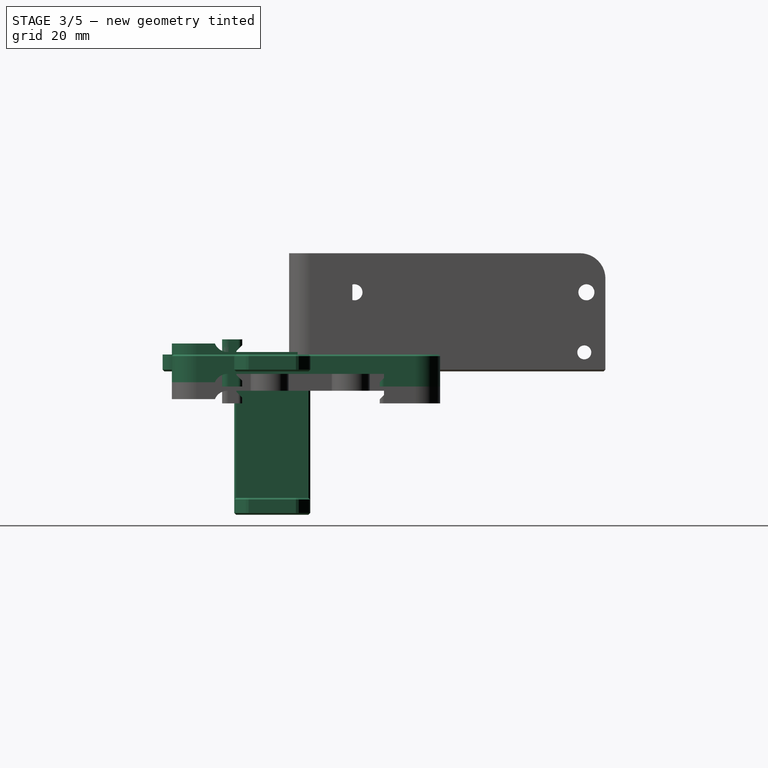
[diagram: stage 3 of 5 — right view after this stage's code; geometry added in this stage tinted green]
FEATURE [Sketcher::SketchObject] Sketch009
  FullyConstrained = true
  MapMode = 5
  Placement = pos=(0,0,0) rot=(1,0,0;1.5708rad)
  Support = -> [XZ_Plane004]
  sketch-geometry (8):
    g0: LineSegment StartX=0 StartY=0 StartZ=0 EndX=79.2 EndY=0 EndZ=0
    g1: LineSegment StartX=79.2 StartY=0 StartZ=0 EndX=79.2 EndY=4 EndZ=0
    g2: LineSegment StartX=79.2 StartY=4 StartZ=0 EndX=-4 EndY=4 EndZ=0
    g3: LineSegment StartX=-4 StartY=4 StartZ=0 EndX=-4 EndY=-34 EndZ=0
    g4: LineSegment StartX=-4 StartY=-34 StartZ=0 EndX=10 EndY=-34 EndZ=0
    g5: LineSegment StartX=10 StartY=-34 StartZ=0 EndX=10 EndY=-30 EndZ=0
    g6: LineSegment StartX=10 StartY=-30 StartZ=0 EndX=0 EndY=-30 EndZ=0
    g7: LineSegment StartX=0 StartY=-30 StartZ=0 EndX=0 EndY=0 EndZ=0
  constraints (23):
    c: Coincident(g-1,g0)
    c: PointOnObject(g0,g-1)
    c: Coincident(g0,g1)
    c: Vertical(g1)
    c: Coincident(g1,g2)
    c: Horizontal(g2)
    c: Coincident(g2,g3)
    c: Vertical(g3)
    c: Coincident(g3,g4)
    c: Horizontal(g4)
    c: Coincident(g4,g5)
    c: Vertical(g5)
    c: Coincident(g5,g6)
    c: Horizontal(g6)
    c: Coincident(g6,g7)
    c: Coincident(g7,g0)
    c: Vertical(g7)
    c: DistanceY(g7,g7) = 30
    c: DistanceY(g3,g3) = 38
    c: DistanceY(g0,g2) = 4
    c: DistanceX(g6,g6) = 10
    c: DistanceX(g2,g0) = 4
    c: DistanceX(g0,g0) = 79.2
FEATURE [PartDesign::Pad] Pad003
  Direction = (1,1,1)
  Length = 18
  Length2 = 100
  Placement = pos=(0,0,0) rot=(1,0,0;1.5708rad)
  Profile = -> Sketch009
  Type = 0
FEATURE [Sketcher::SketchObject] Sketch010
  FullyConstrained = true
  MapMode = 5
  Placement = pos=(0,1.8e-15,4) rot=(0,0,1;3.14159rad)
  Support = -> [Pad003]
  sketch-geometry (3):
    g0: Circle CenterX=-75 CenterY=9 CenterZ=0 NormalX=0 NormalY=0 NormalZ=1 AngleXU=0 Radius=1.9
    g1: Circle CenterX=-65 CenterY=9 CenterZ=0 NormalX=0 NormalY=0 NormalZ=1 AngleXU=0 Radius=1.65
    g2: Circle CenterX=-20 CenterY=9 CenterZ=0 NormalX=0 NormalY=0 NormalZ=1 AngleXU=0 Radius=1.9
  constraints (9):
    c: DistanceY(g1,g0) = 0
    c: DistanceY(g1,g2) = 0
    c: DistanceY(g-1,g2) = 9
    c: Radius(g2) = 1.9
    c: Radius(g0) = 1.9
    c: Radius(g1) = 1.65
    c: DistanceX(g2,g-1) = 20
    c: DistanceX(g1,g2) = 45
    c: DistanceX(g0,g1) = 10
FEATURE [PartDesign::Pocket] Pocket007
  BaseFeature = -> Pad003
  Length = 5
  Length2 = 100
  Placement = pos=(0,0,0) rot=(1,0,0;1.5708rad)
  Profile = -> Sketch010
  Type = 0
FEATURE [Sketcher::SketchObject] Sketch011
  FullyConstrained = true
  MapMode = 5
  Placement = pos=(0,1.8e-15,4) rot=(0,0,1;3.14159rad)
  Support = -> [Pocket007]
  sketch-geometry (1):
    g0: Circle CenterX=-65 CenterY=9 CenterZ=0 NormalX=0 NormalY=0 NormalZ=1 AngleXU=0 Radius=3.5
  constraints (3):
    c: Radius(g0) = 3.5
    c: DistanceY(g-1,g0) = 9
    c: DistanceX(g0,g-1) = 65
FEATURE [PartDesign::Pocket] Pocket008
  BaseFeature = -> Pocket007
  Length = 2
  Length2 = 100
  Placement = pos=(0,0,0) rot=(1,0,0;1.5708rad)
  Profile = -> Sketch011
  Type = 0
FEATURE [PartDesign::Chamfer] Chamfer012008
  Angle = 45
  Base = -> Pocket008 [Edge21,Edge15,Edge17,Edge11]
  BaseFeature = -> Pocket008
  ChamferType = 0
  FlipDirection = false
  Placement = pos=(0,0,0) rot=(1,0,0;1.5708rad)
  Size = 3
  Size2 = 1
  SupportTransform = false
FEATURE [PartDesign::Chamfer] Chamfer012009
  Angle = 45
  Base = -> Chamfer012008 [Edge41,Edge36]
  BaseFeature = -> Chamfer012008
  ChamferType = 0
  FlipDirection = false
  Placement = pos=(0,0,0) rot=(1,0,0;1.5708rad)
  Size = 2
  Size2 = 1
  SupportTransform = false
FEATURE [PartDesign::Chamfer] Chamfer012010
  Angle = 45
  Base = -> Chamfer012009 [Face20,Face19,Face12,Face14,Face13,Face4,Face1,Face11]
  BaseFeature = -> Chamfer012009
  ChamferType = 0
  FlipDirection = false
  Placement = pos=(0,0,0) rot=(1,0,0;1.5708rad)
  Size = 0.4
  Size2 = 1
  SupportTransform = false
FEATURE [PartDesign::Chamfer] Chamfer012011
  Angle = 45
  Base = -> Chamfer012010 [Edge50,Edge52]
  BaseFeature = -> Chamfer012010
  ChamferType = 0
  FlipDirection = false
  Placement = pos=(0,0,0) rot=(1,0,0;1.5708rad)
  Size = 0.4
  Size2 = 1
  SupportTransform = false
FEATURE [PartDesign::Body] Body004005
  Group = -> [Sketch009,Pad003,Sketch010,Pocket007,Sketch011,Pocket008,Chamfer012008,Chamfer012009,Chamfer012010,Chamfer012011]
  Origin = -> Origin004
  Tip = -> Chamfer012011
FEATURE [Part::Feature] Body004006  label="base004"
  Placement = pos=(0,0,4) rot=(0,0,1;0rad)
  shape: bbox 18 x 63.6 x 7.6 mm, 165 faces (baked)
FEATURE [Part::Cylinder] Cylinder008
  Angle = 360
  AttacherType = Attacher::AttachEngine3D
  Height = 10
  Placement = pos=(-15,20,0) rot=(0,0,1;0rad)
  Radius = 2.15
FEATURE [Part::Cylinder] Cylinder009
  Angle = 360
  AttacherType = Attacher::AttachEngine3D
  Height = 10
  Placement = pos=(-15,-30,0) rot=(0,0,1;0rad)
  Radius = 2.15
FEATURE [Part::Box] Box011  label="Cube011"
  AttacherType = Attacher::AttachEngine3D
  Height = 4
  Length = 12
  Placement = pos=(-20,15,0) rot=(0,0,1;0rad)
  Width = 10
FEATURE [Part::Box] Box012  label="Cube012"
  AttacherType = Attacher::AttachEngine3D
  Height = 4
  Length = 29
  Placement = pos=(-20,-35,0) rot=(0,0,1;0rad)
  Width = 10
FEATURE [Part::Cut] Cut005
  Base = -> Box011
  Tool = -> Cylinder008
FEATURE [Part::Cut] Cut006
  Base = -> Box012
  Tool = -> Cylinder009
FEATURE [Part::Fillet] Fillet005
  Base = -> Cut006
  Edges = 1 edges r=5: [Edge6]
FEATURE [Part::Fillet] Fillet006
  Base = -> Cut005
  Edges = 2 edges r=3: [Edge1,Edge3]
FEATURE [Part::Fillet] Fillet007
  Base = -> Fillet005
  Edges = 2 edges r=3: [Edge2,Edge13]
FEATURE [Part::Chamfer] Chamfer012012
  Base = -> Fillet007
  Edges = 7 edges r=0.4: [Edge3,Edge13,Edge15,Edge16,Edge17,Edge18,Edge19]
FEATURE [Part::Chamfer] Chamfer012013
  Base = -> Fillet006
  Edges = 5 edges r=0.4: [Edge1,Edge5,Edge6,Edge8,Edge9]
FEATURE [Part::Chamfer] Chamfer012014
  Base = -> Chamfer012013
  Edges = 1 edges r=0.4: [Edge26]
FEATURE [Part::Chamfer] Chamfer012015
  Base = -> Chamfer012012
  Edges = 1 edges r=0.4: [Edge28]
FEATURE [Part::MultiFuse] Fusion013  label="lrs-psu-mounter"
  Placement = pos=(0,0,4) rot=(0,1,0;3.14159rad)
  Shapes = -> [Chamfer012015,Chamfer012014,Body004006]
FEATURE [Part::Feature] Body004007  label="base005"
  Placement = pos=(45,0,4) rot=(0,0,1;0rad)
  shape: bbox 18 x 63.6 x 7.6 mm, 165 faces (baked)
FEATURE [Part::Cylinder] Cylinder010
  Angle = 360
  AttacherType = Attacher::AttachEngine3D
  Height = 10
  Placement = pos=(-27.5,0,0) rot=(0,0,1;0rad)
  Radius = 1.65
FEATURE [Part::Feature] Body004008  label="base006"
  Placement = pos=(-15,0,4) rot=(0,0,1;0rad)
  shape: bbox 18 x 63.6 x 7.6 mm, 165 faces (baked)
FEATURE [Part::Box] Box013  label="Cube013"
  AttacherType = Attacher::AttachEngine3D
  Height = 4
  Length = 44
  Placement = pos=(-7,-27,0) rot=(0,0,1;0rad)
  Width = 7
FEATURE [Part::Box] Box014  label="Cube014"
  AttacherType = Attacher::AttachEngine3D
  Height = 4
  Length = 44
  Placement = pos=(-7,17,0) rot=(0,0,1;0rad)
  Width = 7
FEATURE [Part::MultiFuse] Fusion015
  Shapes = -> [Cylinder010,Cylinder011]
FEATURE [Part::Chamfer] Chamfer012018
  Base = -> Box014
  Edges = 2 edges r=0.4: [Edge10,Edge12]
FEATURE [Part::Chamfer] Chamfer012019
  Base = -> Box013
  Edges = 2 edges r=0.4: [Edge10,Edge12]
FEATURE [Part::Cut] Cut007
  Base = -> Fusion016
  Tool = -> Fusion015
FEATURE [Part::Chamfer] Chamfer012020
  Base = -> Cut007
  Edges = 2 edges r=0.4: [Edge27,Edge59]
FEATURE [Part::MultiFuse] Fusion017  label="rs-25-psu-mounter"
  Shapes = -> [Body004007,Body004008,Chamfer012018,Chamfer012019,Chamfer012020]
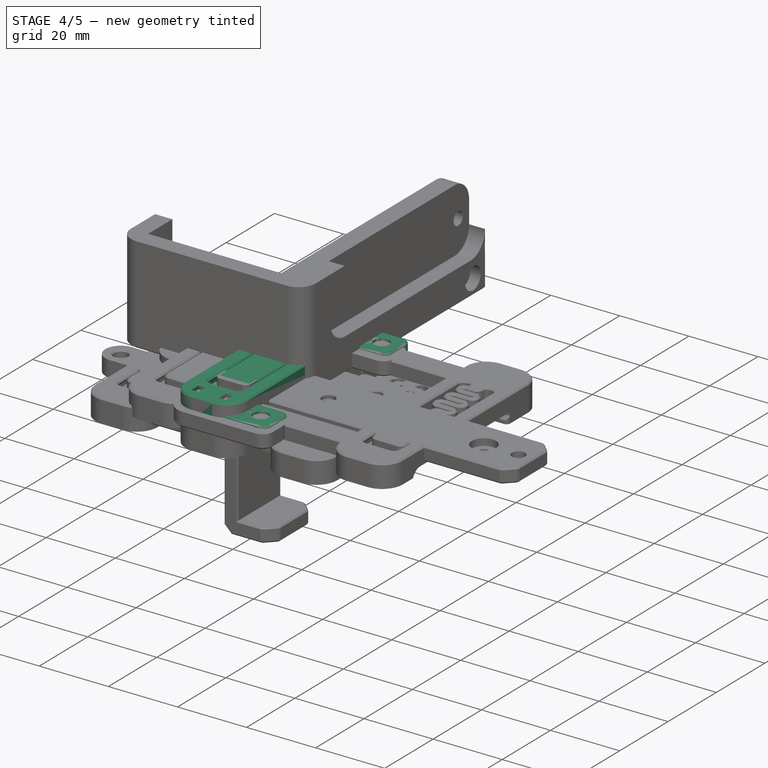
[diagram: stage 4 of 5 — iso view after this stage's code; geometry added in this stage tinted green]
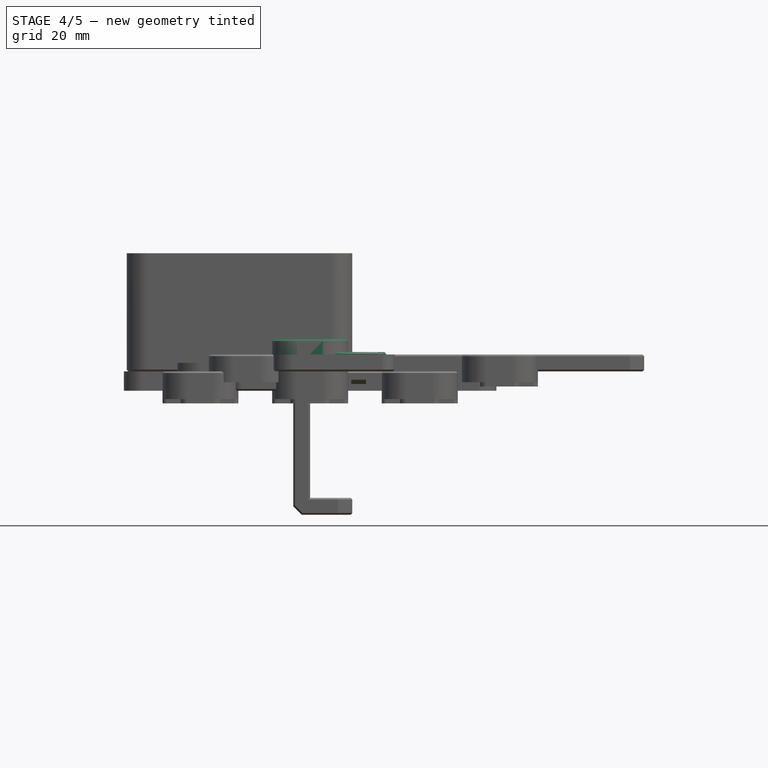
[diagram: stage 4 of 5 — front view after this stage's code; geometry added in this stage tinted green]
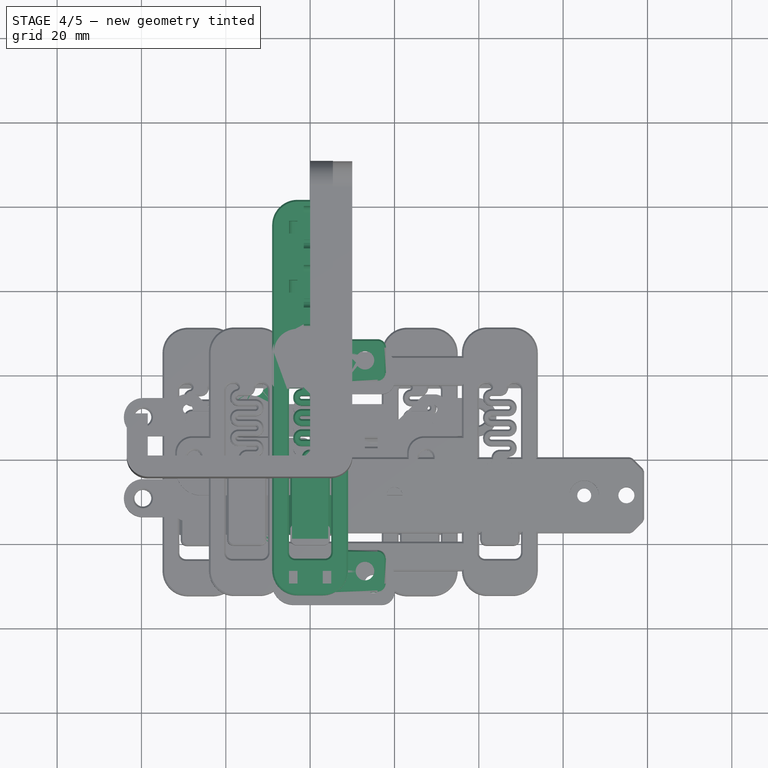
[diagram: stage 4 of 5 — top view after this stage's code; geometry added in this stage tinted green]
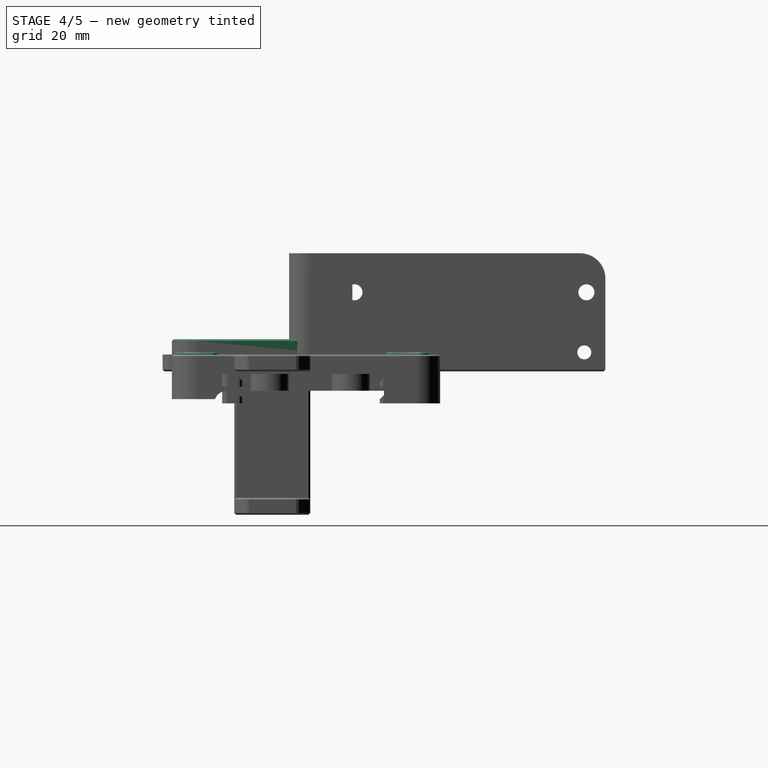
[diagram: stage 4 of 5 — right view after this stage's code; geometry added in this stage tinted green]
FEATURE [Part::Cylinder] Cylinder004
  Angle = 360
  AttacherType = Attacher::AttachEngine3D
  Height = 10
  Placement = pos=(13,23,0) rot=(0,0,1;0rad)
  Radius = 2.2
FEATURE [Part::Cylinder] Cylinder005
  Angle = 360
  AttacherType = Attacher::AttachEngine3D
  Height = 10
  Placement = pos=(13,-27,0) rot=(0,0,1;0rad)
  Radius = 2.2
FEATURE [Part::Box] Box006  label="Cube006"
  AttacherType = Attacher::AttachEngine3D
  Height = 4.6
  Length = 11
  Placement = pos=(7,18,0) rot=(0,0,1;0rad)
  Width = 10
FEATURE [Part::Box] Box007  label="Cube007"
  AttacherType = Attacher::AttachEngine3D
  Height = 4.6
  Length = 13
  Placement = pos=(5,-32,0) rot=(0,0,1;0rad)
  Width = 10
FEATURE [Part::Chamfer] Chamfer007
  Base = -> Box007
  Edges = 1 edges r=2: [Edge3]
FEATURE [Part::MultiFuse] Fusion003
  Shapes = -> [Chamfer007,Box006]
FEATURE [Part::Fillet] Fillet001
  Base = -> Fusion003
  Edges = 4 edges r=2: [Edge5,Edge7,Edge24,Edge27]
FEATURE [Part::Chamfer] Chamfer008
  Base = -> Fillet001
  Edges = 10 edges r=0.4: [Edge1,Edge5,Edge7,Edge8,Edge9,Edge19,Edge20,Edge21,Edge22,Edge23]
FEATURE [Part::MultiFuse] Fusion004
  Shapes = -> [Cylinder005,Cylinder004]
FEATURE [Part::Cut] Cut001
  Base = -> Chamfer008
  Tool = -> Fusion004
FEATURE [Part::MultiFuse] Fusion005
  Shapes = -> [Body001,Cut001]
FEATURE [Part::Feature] Body004003  label="base002"
  Placement = pos=(0,0,4.6) rot=(0,0,1;0rad)
  shape: bbox 18 x 63.6 x 7.6 mm, 165 faces (baked)
FEATURE [Part::Cylinder] Cylinder006
  Angle = 360
  AttacherType = Attacher::AttachEngine3D
  Height = 10
  Placement = pos=(13,16.5,0) rot=(0,0,1;0rad)
  Radius = 1.9
FEATURE [Part::Cylinder] Cylinder007
  Angle = 360
  AttacherType = Attacher::AttachEngine3D
  Height = 10
  Placement = pos=(13,-16.5,0) rot=(0,0,1;0rad)
  Radius = 1.9
FEATURE [Part::Box] Box008  label="Cube008"
  AttacherType = Attacher::AttachEngine3D
  Height = 4.6
  Length = 9
  Placement = pos=(8.5,12.5,0) rot=(0,0,1;0rad)
  Width = 8
FEATURE [Part::Box] Box009  label="Cube009"
  AttacherType = Attacher::AttachEngine3D
  Height = 4.6
  Length = 9
  Placement = pos=(8.5,-20.5,0) rot=(0,0,1;0rad)
  Width = 8
FEATURE [Part::Fillet] Fillet002
  Base = -> Box009
  Edges = 2 edges r=2: [Edge5,Edge7]
FEATURE [Part::Fillet] Fillet003
  Base = -> Box008
  Edges = 2 edges r=2: [Edge5,Edge7]
FEATURE [Part::MultiFuse] Fusion008
  Shapes = -> [Fillet002,Fillet003]
FEATURE [Part::Chamfer] Chamfer009
  Base = -> Fusion008
  Edges = 10 edges r=0.4: [Edge1,Edge5,Edge7,Edge8,Edge9,Edge19,Edge23,Edge25,Edge26,Edge27]
FEATURE [Part::MultiFuse] Fusion009
  Shapes = -> [Cylinder007,Cylinder006]
FEATURE [Part::Cut] Cut002
  Base = -> Chamfer009
  Tool = -> Fusion009
FEATURE [Part::MultiFuse] Fusion010  label="irm-psu-mounter"
  Placement = pos=(0,0,0) rot=(0,1,0;3.14159rad)
  Refine = true
  Shapes = -> [Body004003,Cut002]
FEATURE [Part::Feature] Body004004  label="base003"
  Placement = pos=(0,0,4.6) rot=(0,0,1;0rad)
  shape: bbox 18 x 63.6 x 7.6 mm, 165 faces (baked)
FEATURE [Part::Box] Box010  label="Cube010"
  AttacherType = Attacher::AttachEngine3D
  Height = 7.6
  Length = 18
  Placement = pos=(-9,24,-3) rot=(0,0,1;0rad)
  Width = 37
FEATURE [Part::Fillet] Fillet004
  Base = -> Box010
  Edges = 2 edges r=6: [Edge3,Edge7]
FEATURE [Part::Chamfer] Chamfer010
  Base = -> Fillet004
  Edges = 5 edges r=0.4: [Edge1,Edge6,Edge7,Edge8,Edge9]
FEATURE [Part::MultiFuse] Fusion011
  Placement = pos=(0,0,3) rot=(0,0,1;0rad)
  Shapes = -> [Chamfer010,Body004004]
FEATURE [Part::Feature] Chamfer012001
  Placement = pos=(0,25,2) rot=(0,0,1;0rad)
  shape: bbox 10 x 3 x 10 mm, 22 faces (baked)
FEATURE [Part::Feature] Chamfer012002
  Placement = pos=(1.5,26.5,2) rot=(0,0,1;1.5708rad)
  shape: bbox 3 x 10 x 10 mm, 22 faces (baked)
FEATURE [Part::Feature] Chamfer012003
  Placement = pos=(1.5,54.5,2) rot=(0,0,1;1.5708rad)
  shape: bbox 3 x 10 x 10 mm, 22 faces (baked)
FEATURE [Part::Feature] Chamfer012004
  Placement = pos=(0,53,2) rot=(0,0,1;0rad)
  shape: bbox 10 x 3 x 10 mm, 22 faces (baked)
FEATURE [Part::Feature] Chamfer012005
  Placement = pos=(0,39,2) rot=(0,0,1;0rad)
  shape: bbox 10 x 3 x 10 mm, 22 faces (baked)
FEATURE [Part::Feature] Chamfer012006
  Placement = pos=(1.5,40.5,2) rot=(0,0,1;1.5708rad)
  shape: bbox 3 x 10 x 10 mm, 22 faces (baked)
FEATURE [Part::MultiFuse] Fusion012
  Shapes = -> [Chamfer012006,Chamfer012005,Chamfer012004,Chamfer012003,Chamfer012002,Chamfer012001]
FEATURE [Part::Cut] Cut003
  Base = -> Fusion011
  Tool = -> Fusion012
FEATURE [Part::Feature] Chamfer012007
  Placement = pos=(-2.82e-14,-30,2) rot=(0,0,1;0rad)
  shape: bbox 10 x 3 x 10 mm, 22 faces (baked)
FEATURE [Part::Cut] Cut004
  Base = -> Cut003
  Tool = -> Chamfer012007
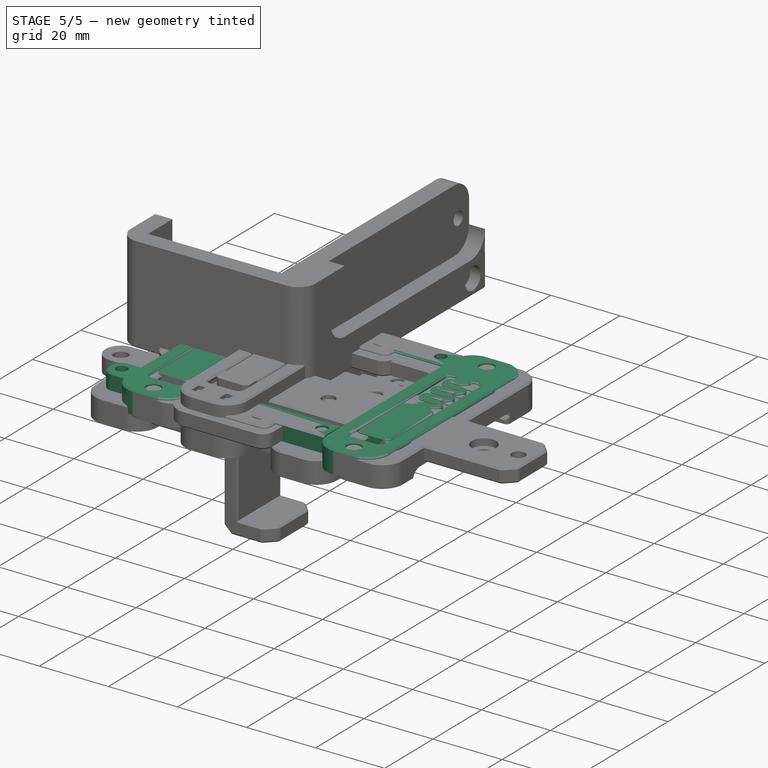
[diagram: stage 5 of 5 — iso view after this stage's code; geometry added in this stage tinted green]
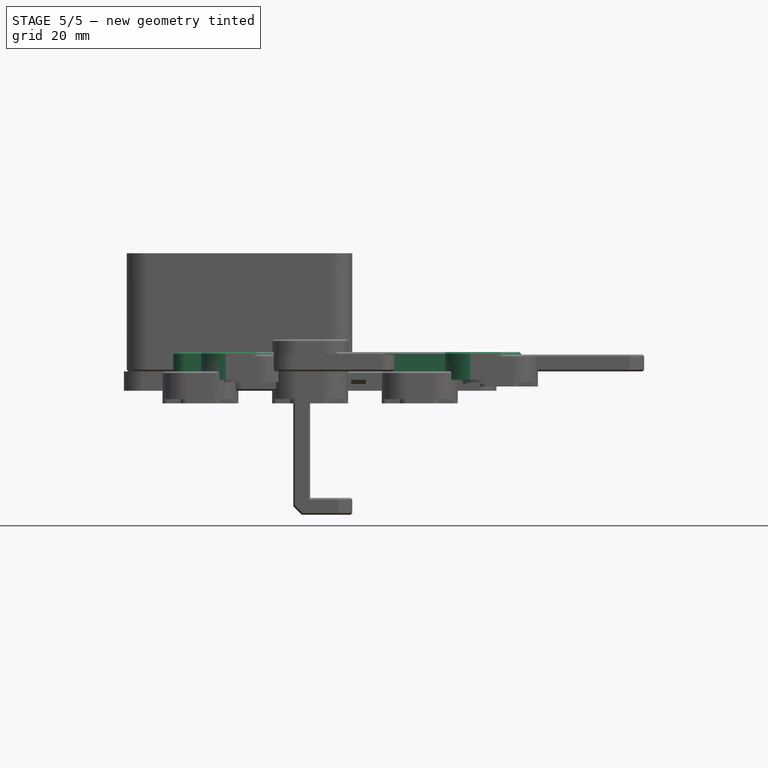
[diagram: stage 5 of 5 — front view after this stage's code; geometry added in this stage tinted green]
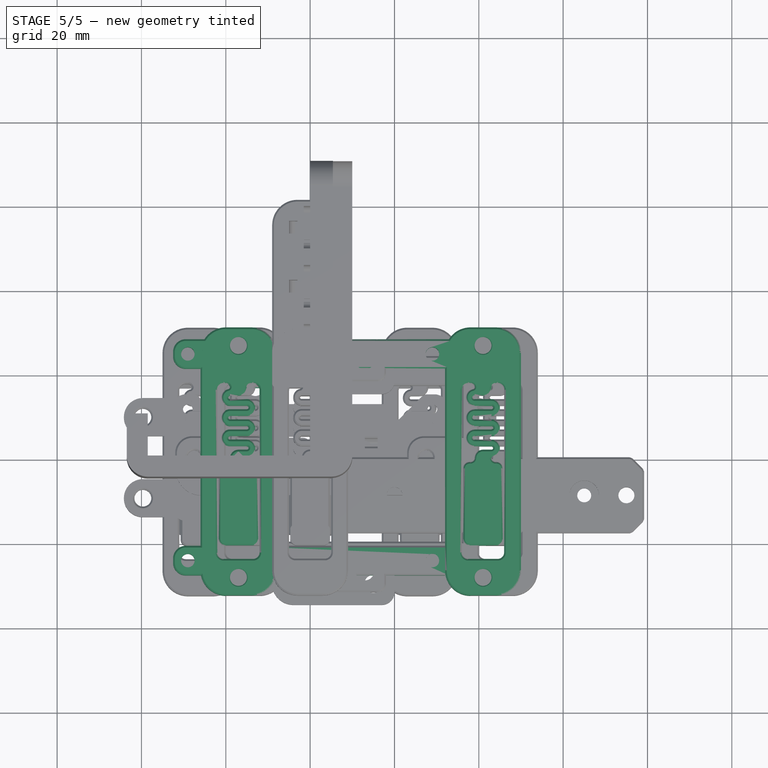
[diagram: stage 5 of 5 — top view after this stage's code; geometry added in this stage tinted green]
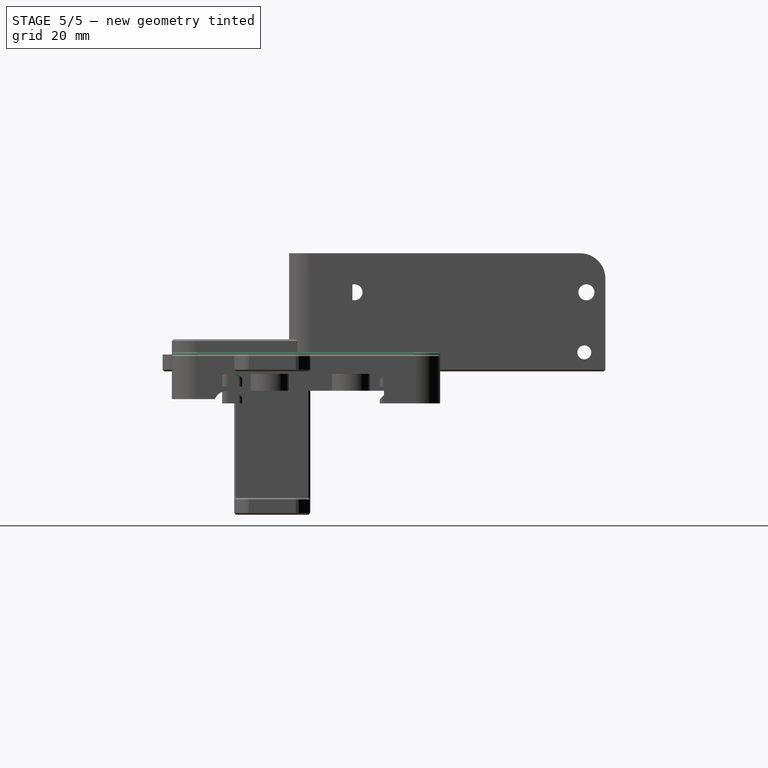
[diagram: stage 5 of 5 — right view after this stage's code; geometry added in this stage tinted green]
FEATURE [PartDesign::Body] Body  label="base"
  BaseFeature = -> Part__Feature822001001
  Group = -> [BaseFeature,Pad,Sketch,Pad001,Sketch001,Pad002]
  Origin = -> Origin
  Tip = -> Pad002
FEATURE [Part::Feature] Body001  label="base001"
  Placement = pos=(0,0,4.6) rot=(0,0,1;0rad)
  shape: bbox 18 x 63.6 x 7.6 mm, 165 faces (baked)
FEATURE [PartDesign::FeatureBase] BaseFeature001
  BaseFeature = -> Body001
FEATURE [Sketcher::SketchObject] Sketch002
  FullyConstrained = false
  MapMode = 5
  Placement = pos=(0,0,0.0031494) rot=(0,0,1;0rad)
  Support = -> [BaseFeature001]
  sketch-geometry (2):
    g0: Circle CenterX=0 CenterY=-28.5 CenterZ=0 NormalX=0 NormalY=0 NormalZ=1 AngleXU=0 Radius=1.65
    g1: Circle CenterX=0 CenterY=26.5 CenterZ=0 NormalX=0 NormalY=0 NormalZ=1 AngleXU=0 Radius=1.65
  constraints (4):
    c: PointOnObject(g0,g-2)
    c: PointOnObject(g1,g-2)
    c: Radius(g1) = 1.65
    c: Radius(g0) = 1.65
FEATURE [PartDesign::Pocket] Pocket
  BaseFeature = -> BaseFeature001
  Length = 10
  Length2 = 100
  Profile = -> Sketch002
  Type = 0
FEATURE [Sketcher::SketchObject] Sketch003
  FullyConstrained = false
  MapMode = 5
  Placement = pos=(-6.6e-14,1.37e-14,-6.59685) rot=(1,0,0;3.14159rad)
  Support = -> [Pocket]
  sketch-geometry (1):
    g0: Circle CenterX=0 CenterY=28.5 CenterZ=0 NormalX=0 NormalY=0 NormalZ=1 AngleXU=0 Radius=3.2
  constraints (2):
    c: PointOnObject(g0,g-2)
    c: Radius(g0) = 3.2
FEATURE [PartDesign::Pocket] Pocket001
  BaseFeature = -> Pocket
  Length = 3.6
  Length2 = 100
  Profile = -> Sketch003
  Type = 0
FEATURE [Sketcher::SketchObject] Sketch004
  FullyConstrained = false
  MapMode = 5
  Placement = pos=(-7.6e-14,8.4e-15,-7.59685) rot=(1,0,0;3.14159rad)
  Support = -> [Pocket001]
  sketch-geometry (1):
    g0: Circle CenterX=0 CenterY=-26.5 CenterZ=0 NormalX=0 NormalY=0 NormalZ=1 AngleXU=0 Radius=3.2
  constraints (2):
    c: PointOnObject(g0,g-2)
    c: Radius(g0) = 3.2
FEATURE [PartDesign::Pocket] Pocket002
  BaseFeature = -> Pocket001
  Length = 4.6
  Length2 = 100
  Profile = -> Sketch004
  Type = 0
FEATURE [PartDesign::Chamfer] Chamfer
  Angle = 45
  Base = -> Pocket002 [Edge222,Edge221]
  BaseFeature = -> Pocket002
  ChamferType = 0
  FlipDirection = false
  Size = 0.2
  Size2 = 1
  SupportTransform = false
FEATURE [PartDesign::Body] Body002  label="din-mount-rev"
  BaseFeature = -> Body001
  Group = -> [BaseFeature001,Sketch002,Pocket,Sketch003,Pocket001,Sketch004,Pocket002,Chamfer]
  Origin = -> Origin001
  Tip = -> Chamfer
FEATURE [PartDesign::FeatureBase] BaseFeature002
  BaseFeature = -> Body001
FEATURE [Sketcher::SketchObject] Sketch005
  FullyConstrained = false
  MapMode = 5
  Placement = pos=(0,0,0.0031494) rot=(0,0,1;0rad)
  Support = -> [BaseFeature002]
  sketch-geometry (2):
    g0: Circle CenterX=0 CenterY=26.5 CenterZ=0 NormalX=0 NormalY=0 NormalZ=1 AngleXU=0 Radius=1.65
    g1: Circle CenterX=0 CenterY=-28.5 CenterZ=0 NormalX=0 NormalY=0 NormalZ=1 AngleXU=0 Radius=1.65
  constraints (3):
    c: PointOnObject(g1,g-2)
    c: Radius(g1) = 1.65
    c: Radius(g0) = 1.65
FEATURE [PartDesign::Pocket] Pocket003
  BaseFeature = -> BaseFeature002
  Length = 10
  Length2 = 100
  Profile = -> Sketch005
  Type = 0
FEATURE [Sketcher::SketchObject] Sketch006
  FullyConstrained = false
  MapMode = 5
  Placement = pos=(-7.6e-14,8.4e-15,-7.59685) rot=(1,0,0;3.14159rad)
  Support = -> [Pocket003]
  sketch-geometry (7):
    g0: LineSegment StartX=3.2 StartY=28.5 StartZ=0 EndX=1.6 EndY=31.2713 EndZ=0
    g1: LineSegment StartX=1.6 StartY=31.2713 StartZ=0 EndX=-1.6 EndY=31.2713 EndZ=0
    g2: LineSegment StartX=-1.6 StartY=31.2713 StartZ=0 EndX=-3.2 EndY=28.5 EndZ=0
    g3: LineSegment StartX=-3.2 StartY=28.5 StartZ=0 EndX=-1.6 EndY=25.7287 EndZ=0
    g4: LineSegment StartX=-1.6 StartY=25.7287 StartZ=0 EndX=1.6 EndY=25.7287 EndZ=0
    g5: LineSegment StartX=1.6 StartY=25.7287 StartZ=0 EndX=3.2 EndY=28.5 EndZ=0
    g6: Circle CenterX=0 CenterY=28.5 CenterZ=0 NormalX=0 NormalY=0 NormalZ=1 AngleXU=0 Radius=3.2
  constraints (15):
    c: Coincident(g0,g1)
    c: Coincident(g1,g2)
    c: Coincident(g2,g3)
    c: Coincident(g3,g4)
    c: Coincident(g4,g5)
    c: Coincident(g5,g0)
    c: Equal(g0, g1-g5) x5
    c: PointOnObject(g0,g6)
    c: PointOnObject(g1,g6)
    c: PointOnObject(g2,g6)
    c: PointOnObject(g3,g6)
    c: PointOnObject(g4,g6)
    c: PointOnObject(g5,g6)
    c: PointOnObject(g6,g-2)
    c: Radius(g6) = 3.2
FEATURE [PartDesign::Pocket] Pocket004
  BaseFeature = -> Pocket003
  Length = 3.6
  Length2 = 100
  Profile = -> Sketch006
  Type = 0
FEATURE [Sketcher::SketchObject] Sketch007
  FullyConstrained = false
  MapMode = 5
  Placement = pos=(-7.6e-14,8.4e-15,-7.59685) rot=(1,0,0;3.14159rad)
  Support = -> [Pocket004]
  sketch-geometry (7):
    g0: LineSegment StartX=3.2 StartY=-26.5 StartZ=0 EndX=1.6 EndY=-23.7287 EndZ=0
    g1: LineSegment StartX=1.6 StartY=-23.7287 StartZ=0 EndX=-1.6 EndY=-23.7287 EndZ=0
    g2: LineSegment StartX=-1.6 StartY=-23.7287 StartZ=0 EndX=-3.2 EndY=-26.5 EndZ=0
    g3: LineSegment StartX=-3.2 StartY=-26.5 StartZ=0 EndX=-1.6 EndY=-29.2713 EndZ=0
    g4: LineSegment StartX=-1.6 StartY=-29.2713 StartZ=0 EndX=1.6 EndY=-29.2713 EndZ=0
    g5: LineSegment StartX=1.6 StartY=-29.2713 StartZ=0 EndX=3.2 EndY=-26.5 EndZ=0
    g6: Circle CenterX=0 CenterY=-26.5 CenterZ=0 NormalX=0 NormalY=0 NormalZ=1 AngleXU=0 Radius=3.2
  constraints (15):
    c: Coincident(g0,g1)
    c: Coincident(g1,g2)
    c: Coincident(g2,g3)
    c: Coincident(g3,g4)
    c: Coincident(g4,g5)
    c: Coincident(g5,g0)
    c: Equal(g0, g1-g5) x5
    c: PointOnObject(g0,g6)
    c: PointOnObject(g1,g6)
    c: PointOnObject(g2,g6)
    c: PointOnObject(g3,g6)
    c: PointOnObject(g4,g6)
    c: PointOnObject(g5,g6)
    c: PointOnObject(g6,g-2)
    c: Radius(g6) = 3.2
FEATURE [PartDesign::Pocket] Pocket005
  BaseFeature = -> Pocket004
  Length = 4.6
  Length2 = 100
  Profile = -> Sketch007
  Type = 0
FEATURE [PartDesign::Chamfer] Chamfer001
  Angle = 45
  Base = -> Pocket005 [Edge221,Edge222]
  BaseFeature = -> Pocket005
  ChamferType = 0
  FlipDirection = false
  Size = 0.2
  Size2 = 1
  SupportTransform = false
FEATURE [PartDesign::Body] Body003  label="din-mount-hex-nut"
  BaseFeature = -> Body001
  Group = -> [BaseFeature002,Sketch005,Pocket003,Sketch006,Pocket004,Sketch007,Pocket005,Chamfer001]
  Origin = -> Origin002
  Tip = -> Chamfer001
FEATURE [PartDesign::FeatureBase] BaseFeature003
  BaseFeature = -> Body001
FEATURE [Sketcher::SketchObject] Sketch008
  FullyConstrained = false
  MapMode = 5
  Placement = pos=(0,0,0.0031494) rot=(0,0,1;0rad)
  Support = -> [BaseFeature003]
  sketch-geometry (2):
    g0: Circle CenterX=0 CenterY=26.5 CenterZ=0 NormalX=0 NormalY=0 NormalZ=1 AngleXU=0 Radius=2
    g1: Circle CenterX=0 CenterY=-28.5 CenterZ=0 NormalX=0 NormalY=0 NormalZ=1 AngleXU=0 Radius=2
  constraints (4):
    c: PointOnObject(g0,g-2)
    c: PointOnObject(g1,g-2)
    c: Radius(g1) = 2
    c: Radius(g0) = 2
FEATURE [PartDesign::Pocket] Pocket006
  BaseFeature = -> BaseFeature003
  Length = 10
  Length2 = 100
  Profile = -> Sketch008
  Type = 0
FEATURE [PartDesign::Chamfer] Chamfer002
  Angle = 45
  Base = -> Pocket006 [Edge221,Edge222]
  BaseFeature = -> Pocket006
  ChamferType = 0
  FlipDirection = false
  Size = 0.2
  Size2 = 1
  SupportTransform = false
FEATURE [PartDesign::Body] Body004  label="din-mount-thread-insert"
  BaseFeature = -> Body001
  Group = -> [BaseFeature003,Sketch008,Pocket006,Chamfer002]
  Origin = -> Origin003
  Tip = -> Chamfer002
FEATURE [Part::Cylinder] Cylinder
  Angle = 360
  AttacherType = Attacher::AttachEngine3D
  Height = 10
  Placement = pos=(-29,24.5,0) rot=(0,0,1;0rad)
  Radius = 1.6
FEATURE [Part::Cylinder] Cylinder001
  Angle = 360
  AttacherType = Attacher::AttachEngine3D
  Height = 10
  Placement = pos=(29,-24.5,0) rot=(0,0,1;0rad)
  Radius = 1.6
FEATURE [Part::Cylinder] Cylinder002
  Angle = 360
  AttacherType = Attacher::AttachEngine3D
  Height = 10
  Placement = pos=(29,24.5,0) rot=(0,0,1;0rad)
  Radius = 1.6
FEATURE [Part::Cylinder] Cylinder003
  Angle = 360
  AttacherType = Attacher::AttachEngine3D
  Height = 10
  Placement = pos=(-29,-24.5,0) rot=(0,0,1;0rad)
  Radius = 1.6
FEATURE [Part::Feature] Body004001  label="din-mount-thread-insert001"
  Placement = pos=(-17,0,4.6) rot=(0,0,1;0rad)
  shape: bbox 18 x 63.6 x 7.6 mm, 165 faces (baked)
FEATURE [Part::Feature] Body004002  label="din-mount-thread-insert002"
  Placement = pos=(41,0,4.6) rot=(0,0,1;0rad)
  shape: bbox 18 x 63.6 x 7.6 mm, 165 faces (baked)
FEATURE [Part::Box] Box  label="Cube"
  AttacherType = Attacher::AttachEngine3D
  Height = 4.6
  Length = 8
  Placement = pos=(-32.5,-28,0) rot=(0,0,1;0rad)
  Width = 7
FEATURE [Part::Box] Box001  label="Cube001"
  AttacherType = Attacher::AttachEngine3D
  Height = 4.6
  Length = 8
  Placement = pos=(-32.5,21,0) rot=(0,0,1;0rad)
  Width = 7
FEATURE [Part::Box] Box004  label="Cube004"
  AttacherType = Attacher::AttachEngine3D
  Height = 4.6
  Length = 41
  Placement = pos=(-9,-28,0) rot=(0,0,1;0rad)
  Width = 7
FEATURE [Part::Box] Box005  label="Cube005"
  AttacherType = Attacher::AttachEngine3D
  Height = 4.6
  Length = 43
  Placement = pos=(-9.5,21,0) rot=(0,0,1;0rad)
  Width = 7
FEATURE [Part::Chamfer] Chamfer004
  Base = -> Box005
  Edges = 2 edges r=0.4: [Edge10,Edge12]
FEATURE [Part::Chamfer] Chamfer005
  Base = -> Box004
  Edges = 2 edges r=0.4: [Edge10,Edge12]
FEATURE [Part::MultiFuse] Fusion
  Shapes = -> [Box001,Box]
FEATURE [Part::Fillet] Fillet
  Base = -> Fusion
  Edges = 4 edges r=3: [Edge1,Edge3,Edge13,Edge15]
FEATURE [Part::Chamfer] Chamfer006
  Base = -> Fillet
  Edges = 10 edges r=0.4: [Edge1,Edge5,Edge6,Edge8,Edge9,Edge19,Edge23,Edge24,Edge26,Edge27]
FEATURE [Part::MultiFuse] Fusion001
  Shapes = -> [Chamfer005,Chamfer004,Chamfer006,Body004001,Body004002]
FEATURE [Part::MultiFuse] Fusion002
  Shapes = -> [Cylinder,Cylinder003,Cylinder001,Cylinder002]
FEATURE [Part::Cut] Cut  label="rpi-mount"
  Base = -> Fusion001
  Tool = -> Fusion002
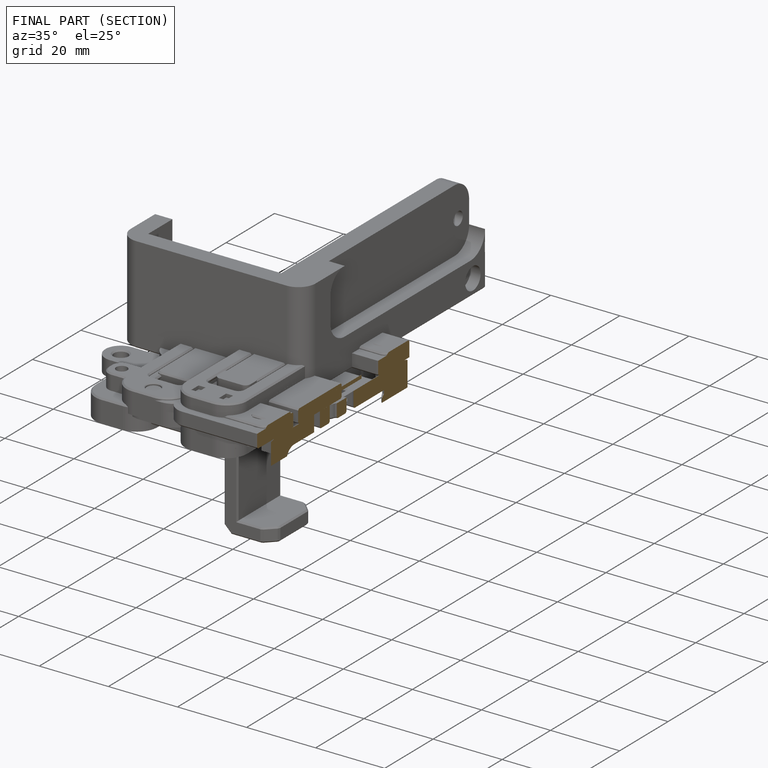
[diagram: finished part — half-section view (interior)]
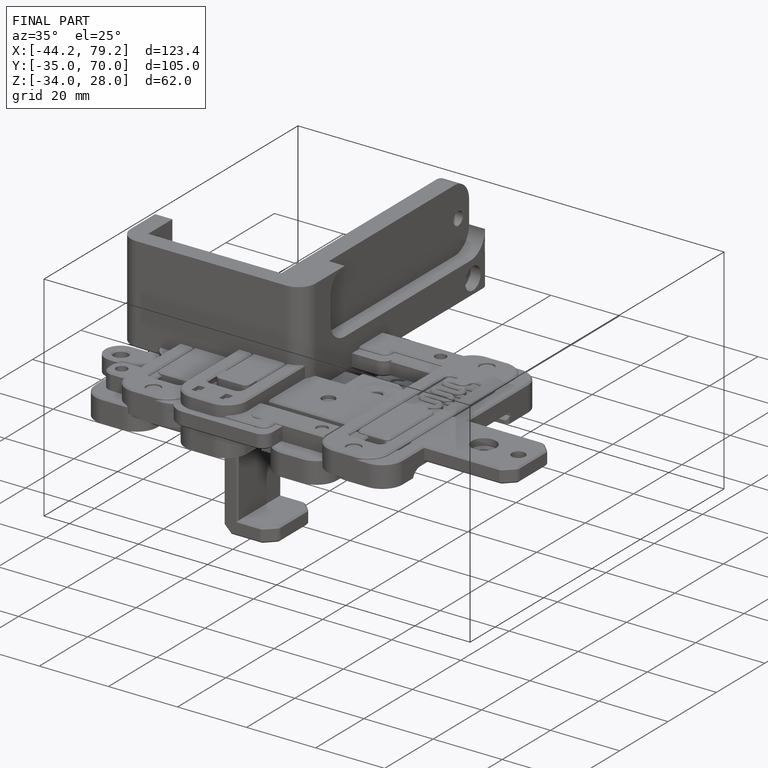
[diagram: finished part — iso view with bounding-box wireframe]
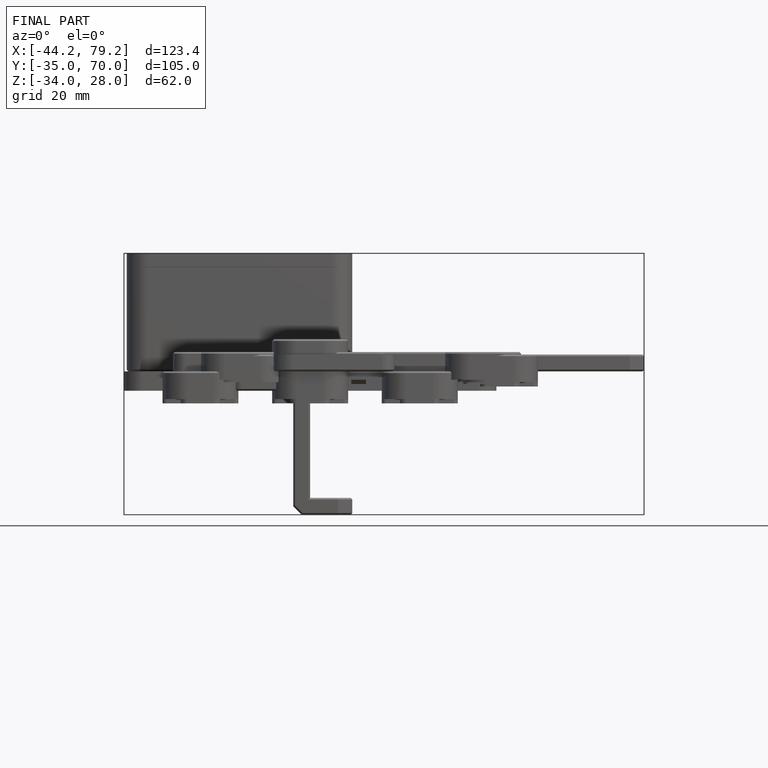
[diagram: finished part — front view with bounding-box wireframe]
